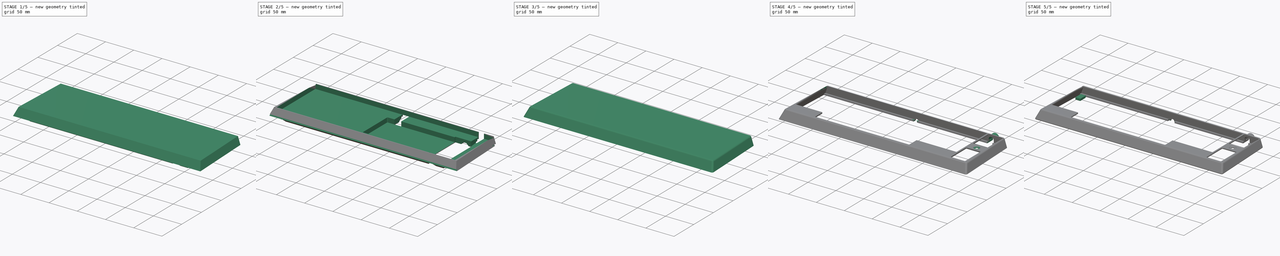
[diagram: build sequence overview — one tinted view per stage of 5, left to right]
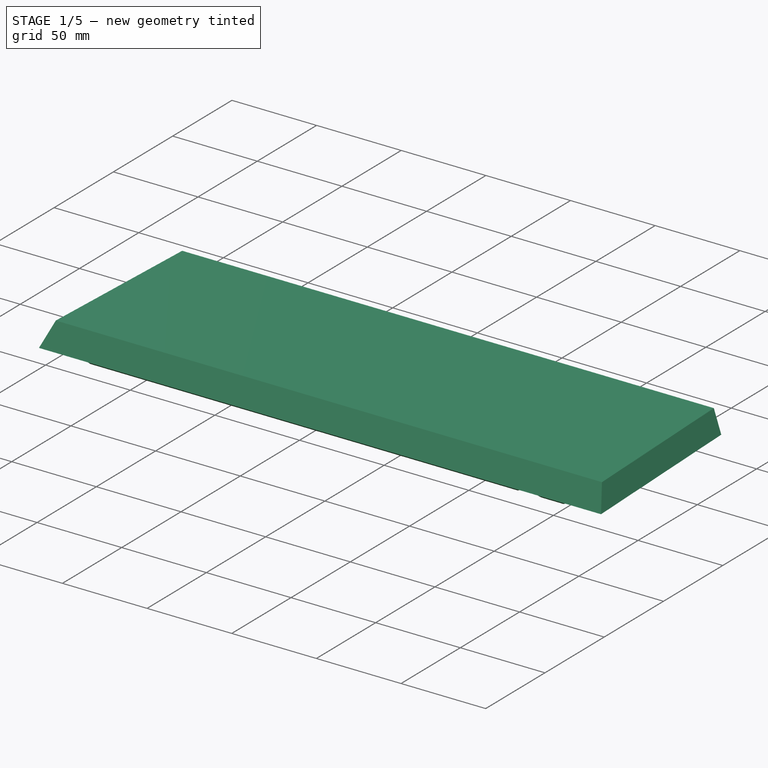
[diagram: stage 1 of 5 — iso view after this stage's code; geometry added in this stage tinted green]
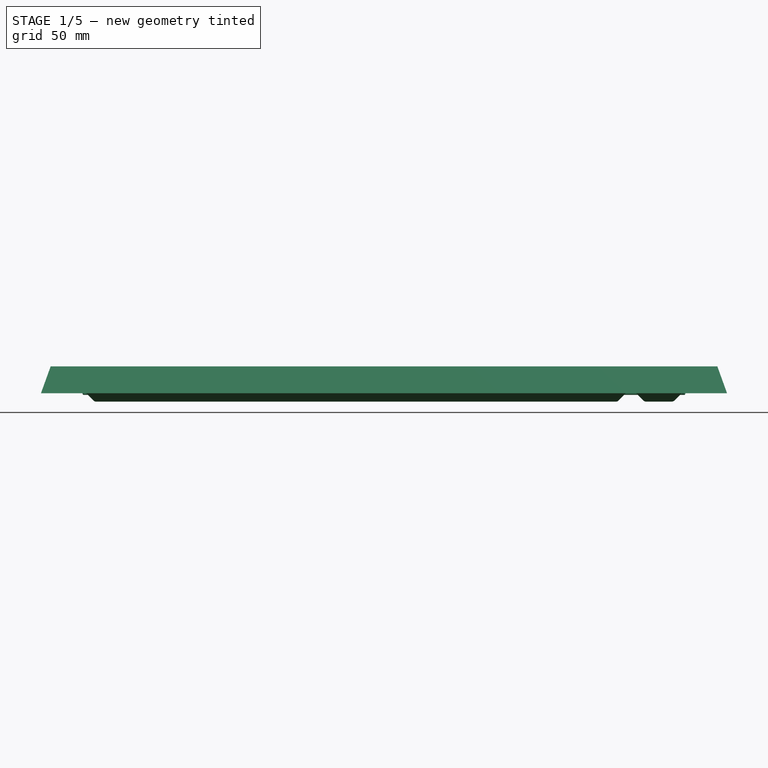
[diagram: stage 1 of 5 — front view after this stage's code; geometry added in this stage tinted green]
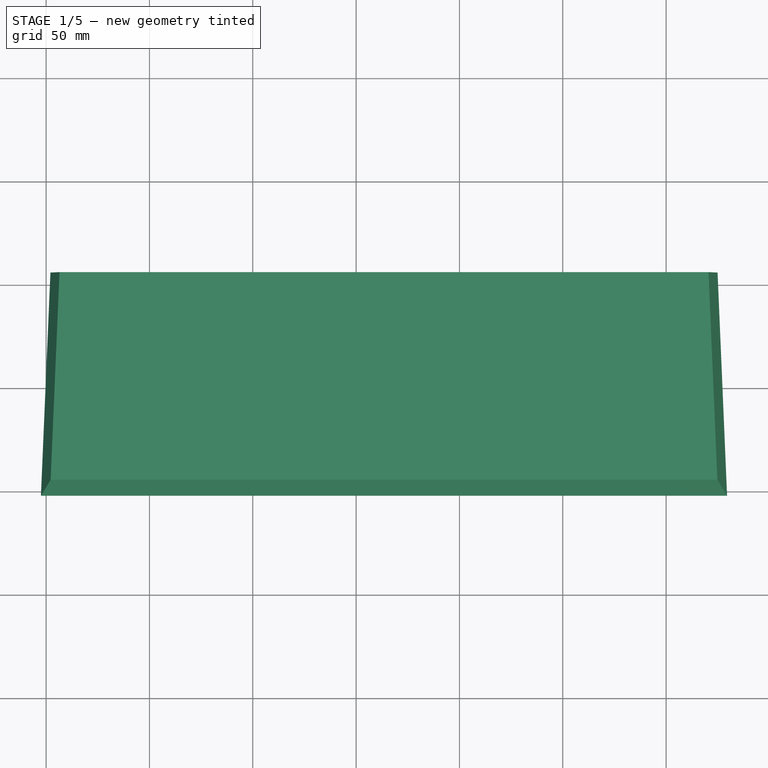
[diagram: stage 1 of 5 — top view after this stage's code; geometry added in this stage tinted green]
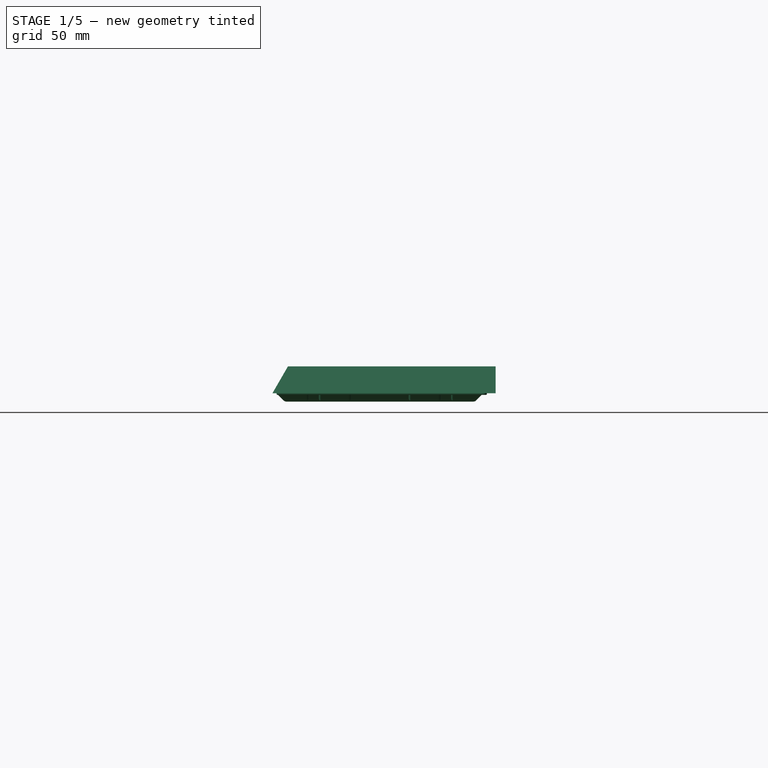
[diagram: stage 1 of 5 — right view after this stage's code; geometry added in this stage tinted green]
FCSTD DOCUMENT  (FreeCAD 0.21R33771 (Git))
Label: Decent400W-enclosure
License: All rights reserved
LicenseURL: http://en.wikipedia.org/wiki/All_rights_reserved
objects: Sketcher::SketchObject×26, PartDesign::Pocket×18, PartDesign::Fillet×13, PartDesign::Pad×8, PartDesign::Draft×6, PartDesign::SubShapeBinder×6, PartDesign::ShapeBinder×3, PartDesign::Body×3, PartDesign::SubtractiveCylinder×2, Part::Offset2D×2, PartDesign::FeatureBase×1, PartDesign::Thickness×1
note: 137 computed .brp shape members not serialized (recipe doc carries the construction recipe); baked Part::Feature solids carry a one-line shape summary decoded from their .brp

FEATURE [Sketcher::SketchObject] Sketch  label="BaseInsertSketch"
  FullyConstrained = true
  MapMode = 5
  Support = -> [XY_Plane]
  sketch-geometry (5):
    g0: LineSegment StartX=130.5 StartY=-50 StartZ=0 EndX=130.5 EndY=50 EndZ=0
    g1: LineSegment StartX=130.5 StartY=50 StartZ=0 EndX=-130.5 EndY=50 EndZ=0
    g2: LineSegment StartX=-130.5 StartY=50 StartZ=0 EndX=-130.5 EndY=-50 EndZ=0
    g3: LineSegment StartX=-130.5 StartY=-50 StartZ=0 EndX=130.5 EndY=-50 EndZ=0
    g4: GeomPoint X=0 Y=0 Z=0
  constraints (12):
    c: Coincident(g0,g1)
    c: Coincident(g1,g2)
    c: Coincident(g2,g3)
    c: Coincident(g3,g0)
    c: Horizontal(g1)
    c: Horizontal(g3)
    c: Vertical(g0)
    c: Vertical(g2)
    c: Symmetric(g1,g0,g4)
    c: Coincident(g4,g-1)
    c: DistanceY(g2,g2) = 100
    c: DistanceX(g1,g1) = 261
FEATURE [PartDesign::Pad] Pad  label="BaseInsertPad"
  Direction = (0,0,1)
  Length = 4
  Length2 = 10
  Profile = -> Sketch
  ReferenceAxis = -> Sketch [N_Axis]
  Reversed = true
  TaperAngle = -45
  Type = 0
FEATURE [Sketcher::SketchObject] Sketch001  label="MainBodySketch"
  ExternalGeometry = -> [Pad]
  FullyConstrained = true
  MapMode = 5
  Support = -> [Pad]
  sketch-geometry (4):
    g0: LineSegment StartX=-147.898 StartY=56 StartZ=0 EndX=174.898 EndY=56 EndZ=0
    g1: LineSegment StartX=174.898 StartY=56 StartZ=0 EndX=179.5 EndY=-52 EndZ=0
    g2: LineSegment StartX=179.5 StartY=-52 StartZ=0 EndX=-152.5 EndY=-52 EndZ=0
    g3: LineSegment StartX=-152.5 StartY=-52 StartZ=0 EndX=-147.898 EndY=56 EndZ=0
  constraints (12):
    c: Coincident(g0,g1)
    c: Coincident(g1,g2)
    c: Coincident(g2,g3)
    c: Coincident(g3,g0)
    c: Horizontal(g0)
    c: Horizontal(g2)
    c: DistanceY(g2,g-3) = 2
    c: Angle(g2,g3) = 1.52821
    c: Angle(g1,g2) = 1.52821
    c: DistanceX(g2,g-3) = 22
    c: DistanceY(g2,g0) = 108
    c: DistanceX(g2,g1) = 332
FEATURE [PartDesign::Pad] Pad001  label="MainBodyPad"
  BaseFeature = -> Pad
  Direction = (0,0,1)
  Length = 13
  Length2 = 10
  Profile = -> Sketch001
  ReferenceAxis = -> Sketch001 [N_Axis]
  Type = 0
FEATURE [PartDesign::Draft] Draft  label="MainBodySideDraft"
  Angle = 18.6
  Base = -> Pad001 [Face3,Face2]
  BaseFeature = -> Pad001
  NeutralPlane = -> Pad001 [Face4]
  SupportTransform = false
FEATURE [PartDesign::Draft] Draft001  label="MainBodyFrontDraft"
  Angle = 30
  Base = -> Draft [Face6]
  BaseFeature = -> Draft
  NeutralPlane = -> Draft [Face4]
  SupportTransform = false
FEATURE [PartDesign::Draft] Draft002  label="MainBodyBackDraft"
  Angle = 0
  Base = -> Draft001 [Face1]
  BaseFeature = -> Draft001
  NeutralPlane = -> Draft001 [Face4]
  SupportTransform = false
FEATURE [Sketcher::SketchObject] Sketch002  label="ConsoleKeySketch"
  ExternalGeometry = -> [Draft002]
  FullyConstrained = true
  MapMode = 5
  Placement = pos=(0,0,0) rot=(1,0,0;3.14159rad)
  Support = -> [Draft002]
  sketch-geometry (4):
    g0: LineSegment StartX=135.5 StartY=50 StartZ=0 EndX=157.5 EndY=50 EndZ=0
    g1: LineSegment StartX=157.5 StartY=50 StartZ=0 EndX=157.5 EndY=-50 EndZ=0
    g2: LineSegment StartX=157.5 StartY=-50 StartZ=0 EndX=135.5 EndY=-50 EndZ=0
    g3: LineSegment StartX=135.5 StartY=-50 StartZ=0 EndX=135.5 EndY=50 EndZ=0
  constraints (12):
    c: Coincident(g0,g1)
    c: Coincident(g1,g2)
    c: Coincident(g2,g3)
    c: Coincident(g3,g0)
    c: Horizontal(g0)
    c: Horizontal(g2)
    c: Vertical(g1)
    c: Vertical(g3)
    c: DistanceX(g0,g0) = 22
    c: DistanceY(g1,g1) = 100
    c: Horizontal(g-3,g0)
    c: DistanceX(g-3,g0) = 5
FEATURE [PartDesign::Pad] Pad002  label="ConsoleKeyPad"
  BaseFeature = -> Draft002
  Direction = (0,0,-1)
  Length = 4
  Length2 = 10
  Profile = -> Sketch002
  ReferenceAxis = -> Sketch002 [N_Axis]
  TaperAngle = -45
  Type = 0
FEATURE [Sketcher::SketchObject] Sketch003
  ExternalGeometry = -> [Pad002]
  FullyConstrained = true
  MapMode = 5
  Placement = pos=(0,0,-4) rot=(1,0,0;3.14159rad)
  Support = -> [Pad002]
  sketch-geometry (17):
    g0: LineSegment StartX=135.5 StartY=14 StartZ=0 EndX=157.5 EndY=14 EndZ=0
    g1: LineSegment StartX=157.5 StartY=14 StartZ=0 EndX=157.5 EndY=-14 EndZ=0
    g2: LineSegment StartX=157.5 StartY=-14 StartZ=0 EndX=135.5 EndY=-14 EndZ=0
    g3: LineSegment StartX=135.5 StartY=-14 StartZ=0 EndX=135.5 EndY=14 EndZ=0
    g4: LineSegment StartX=135.5 StartY=50 StartZ=0 EndX=135.5 EndY=14 EndZ=0
    g5: LineSegment StartX=135.5 StartY=-14 StartZ=0 EndX=135.5 EndY=-50 EndZ=0
    g6: LineSegment StartX=157.5 StartY=34.5 StartZ=0 EndX=135.5 EndY=34.5 EndZ=0
    g7: LineSegment StartX=135.5 StartY=34.5 StartZ=0 EndX=135.5 EndY=29.5 EndZ=0
    g8: LineSegment StartX=135.5 StartY=29.5 StartZ=0 EndX=157.5 EndY=29.5 EndZ=0
    g9: LineSegment StartX=157.5 StartY=29.5 StartZ=0 EndX=157.5 EndY=34.5 EndZ=0
    g10: LineSegment StartX=135.5 StartY=50 StartZ=0 EndX=135.5 EndY=34.5 EndZ=0
    g11: LineSegment StartX=135.5 StartY=29.5 StartZ=0 EndX=135.5 EndY=14 EndZ=0
    g12: LineSegment StartX=157.5 StartY=-29.5 StartZ=0 EndX=135.5 EndY=-29.5 EndZ=0
    g13: LineSegment StartX=135.5 StartY=-29.5 StartZ=0 EndX=135.5 EndY=-34.5 EndZ=0
    g14: LineSegment StartX=135.5 StartY=-34.5 StartZ=0 EndX=157.5 EndY=-34.5 EndZ=0
    g15: LineSegment StartX=157.5 StartY=-34.5 StartZ=0 EndX=157.5 EndY=-29.5 EndZ=0
    g16: LineSegment StartX=157.5 StartY=-14 StartZ=0 EndX=157.5 EndY=-29.5 EndZ=0
  constraints (46):
    c: Coincident(g0,g1)
    c: Coincident(g1,g2)
    c: Coincident(g2,g3)
    c: Coincident(g3,g0)
    c: Horizontal(g0)
    c: Horizontal(g2)
    c: Vertical(g1)
    c: Vertical(g3)
    c: Vertical(g-3,g0)
    c: Vertical(g-4,g0)
    c: DistanceY(g1,g1) = 28
    c: Coincident(g4,g-3)
    c: Coincident(g4,g0)
    c: Coincident(g5,g2)
    c: Coincident(g5,g-5)
    c: Equal(g4,g5)
    c: Coincident(g6,g7)
    c: Coincident(g7,g8)
    c: Coincident(g8,g9)
    c: Coincident(g9,g6)
    c: Horizontal(g6)
    c: Horizontal(g8)
    c: Vertical(g7)
    c: Vertical(g9)
    c: PointOnObject(g7,g4)
    c: DistanceY(g9,g9) = 5
    c: Vertical(g6,g-4)
    c: Coincident(g10,g4)
    c: Coincident(g10,g6)
    c: Coincident(g11,g7)
    c: Coincident(g11,g0)
    c: Equal(g10,g11)
    c: Coincident(g12,g13)
    c: Coincident(g13,g14)
    c: Coincident(g14,g15)
    c: Coincident(g15,g12)
    c: Horizontal(g12)
    c: Horizontal(g14)
    c: Vertical(g13)
    c: Vertical(g15)
    c: Vertical(g12,g2)
    c: Vertical(g1,g12)
    c: Equal(g9,g15)
    c: Coincident(g16,g1)
    c: Coincident(g16,g12)
    c: Equal(g11,g16)
FEATURE [PartDesign::Pocket] Pocket  label="ConsoleKeySeparationPocket"
  BaseFeature = -> Pad002
  Direction = (0,0,1)
  Length = 0
  Length2 = 5
  Profile = -> Sketch003
  ReferenceAxis = -> Sketch003 [N_Axis]
  Type = 3
  UpToFace = -> Pad002 [Face4]
FEATURE [Sketcher::SketchObject] Sketch004  label="TrenchInsertSketch"
  ExternalGeometry = -> [Pocket]
  FullyConstrained = true
  MapMode = 5
  Placement = pos=(0,0,0) rot=(1,0,0;3.14159rad)
  Support = -> [Pocket]
  sketch-geometry (12):
    g0: LineSegment StartX=-131.3 StartY=50 StartZ=0 EndX=-131.3 EndY=-50 EndZ=0
    g1: LineSegment StartX=-130.5 StartY=-50.8 StartZ=0 EndX=157.5 EndY=-50.8 EndZ=0
    g2: LineSegment StartX=158.3 StartY=-50 StartZ=0 EndX=158.3 EndY=50 EndZ=0
    g3: LineSegment StartX=158.3 StartY=50 StartZ=0 EndX=159.3 EndY=50 EndZ=0
    g4: LineSegment StartX=159.3 StartY=50 StartZ=0 EndX=159.3 EndY=-50 EndZ=0
    g5: LineSegment StartX=157.5 StartY=-51.8 StartZ=0 EndX=-130.5 EndY=-51.8 EndZ=0
    g6: LineSegment StartX=-132.3 StartY=-50 StartZ=0 EndX=-132.3 EndY=50 EndZ=0
    g7: LineSegment StartX=-132.3 StartY=50 StartZ=0 EndX=-131.3 EndY=50 EndZ=0
    g8: ArcOfCircle CenterX=-130.5 CenterY=-50 CenterZ=0 NormalX=0 NormalY=0 NormalZ=1 AngleXU=0 Radius=0.8 StartAngle=3.14159 EndAngle=4.71239
    g9: ArcOfCircle CenterX=-130.5 CenterY=-50 CenterZ=0 NormalX=0 NormalY=0 NormalZ=1 AngleXU=0 Radius=1.8 StartAngle=3.14159 EndAngle=4.7124
    g10: ArcOfCircle CenterX=157.5 CenterY=-50 CenterZ=0 NormalX=0 NormalY=0 NormalZ=1 AngleXU=0 Radius=0.8 StartAngle=4.71239 EndAngle=6.28319
    g11: ArcOfCircle CenterX=157.5 CenterY=-50 CenterZ=0 NormalX=0 NormalY=0 NormalZ=1 AngleXU=0 Radius=1.8 StartAngle=4.71239 EndAngle=6.28319
  constraints (36):
    c: Vertical(g0)
    c: Horizontal(g1)
    c: Vertical(g2)
    c: Coincident(g2,g3)
    c: Horizontal(g3)
    c: Coincident(g3,g4)
    c: Vertical(g4)
    c: Horizontal(g5)
    c: Coincident(g6,g7)
    c: Coincident(g7,g0)
    c: Horizontal(g7)
    c: Horizontal(g0,g-3)
    c: Horizontal(g6,g3)
    c: DistanceX(g0,g-4) = 0.8
    c: DistanceX(g7,g7) = 1
    c: Equal(g7,g3)
    c: Coincident(g8,g-4)
    c: Vertical(g8,g8)
    c: DistanceY(g8,g8) = 0.8
    c: Coincident(g1,g8)
    c: Coincident(g0,g8)
    c: Vertical(g6)
    c: Coincident(g9,g5)
    c: Coincident(g9,g8)
    c: Horizontal(g9,g8)
    c: Coincident(g6,g9)
    c: Horizontal(g-5,g2)
    c: Vertical(g1,g-5)
    c: Coincident(g10,g-5)
    c: Coincident(g10,g1)
    c: Coincident(g10,g2)
    c: Horizontal(g10,g4)
    c: Vertical(g10,g5)
    c: Coincident(g11,g10)
    c: Coincident(g11,g5)
    c: Coincident(g11,g4)
FEATURE [PartDesign::Fillet] Fillet  label="ConsoleKeyAndKeybordInsertFillet"
  Base = -> Pocket [Edge61,Edge64,Edge63,Edge78,Edge62,Edge59,Edge60,Edge54,Edge77,Edge66,Edge76,Edge65,Edge67,Edge75,Edge74,Edge70,Edge68,Edge69,Edge49,Edge50,Edge71,Edge43,Edge72,Edge73,Edge44,Edge42,Edge58,Edge55,Edge53,Edge48,Edge45,Edge41,Edge33,Edge35,Edge37,Edge38,Edge39,Edge40,Edge36,Edge34]
  BaseFeature = -> Pocket
  Radius = 1.5
  SupportTransform = false
  UseAllEdges = false
FEATURE [PartDesign::Pad] Pad003  label="TrenchInsertPad"
  BaseFeature = -> Fillet
  Direction = (0,0,-1)
  Length = 0.75
  Length2 = 10
  Profile = -> Sketch004
  ReferenceAxis = -> Sketch004 [N_Axis]
  Type = 0
FEATURE [PartDesign::Fillet] Fillet002  label="TrenchInsertShapeFillet"
  Base = -> Pad003 [Edge147,Edge151,Edge148,Edge146,Edge149,Edge136,Edge137,Edge134]
  BaseFeature = -> Pad003
  Radius = 0.45
  SupportTransform = false
  UseAllEdges = false
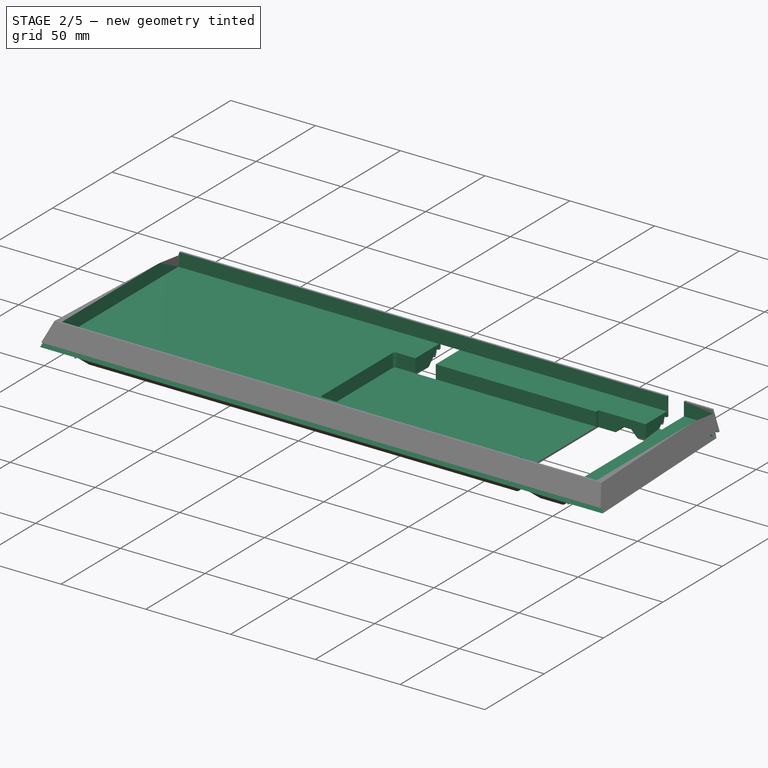
[diagram: stage 2 of 5 — iso view after this stage's code; geometry added in this stage tinted green]
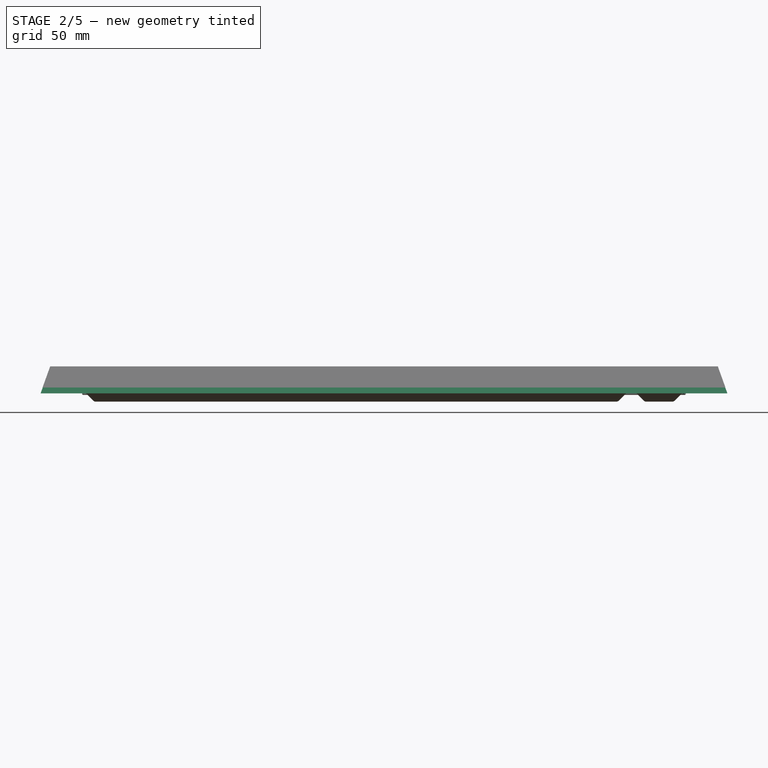
[diagram: stage 2 of 5 — front view after this stage's code; geometry added in this stage tinted green]
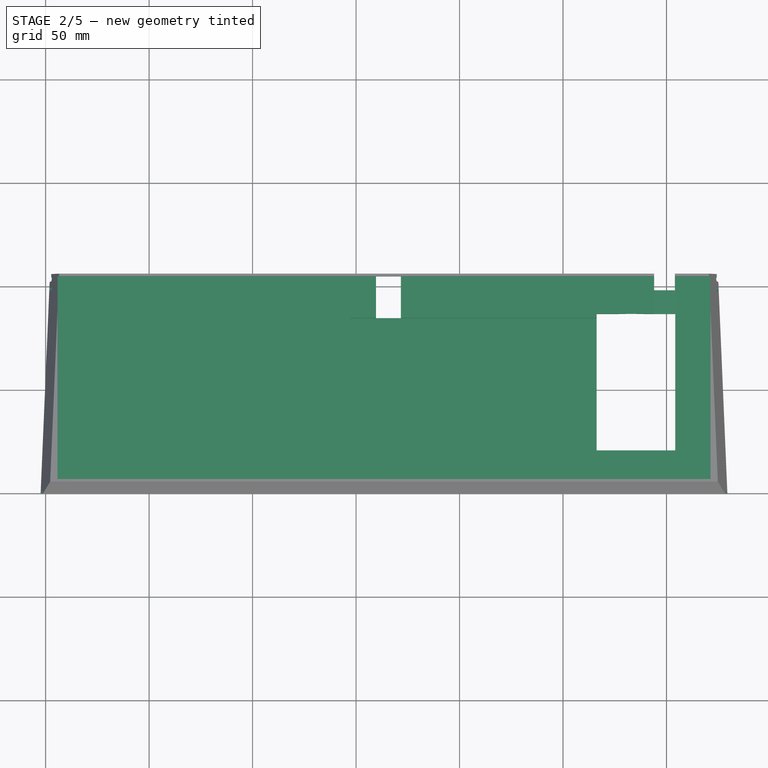
[diagram: stage 2 of 5 — top view after this stage's code; geometry added in this stage tinted green]
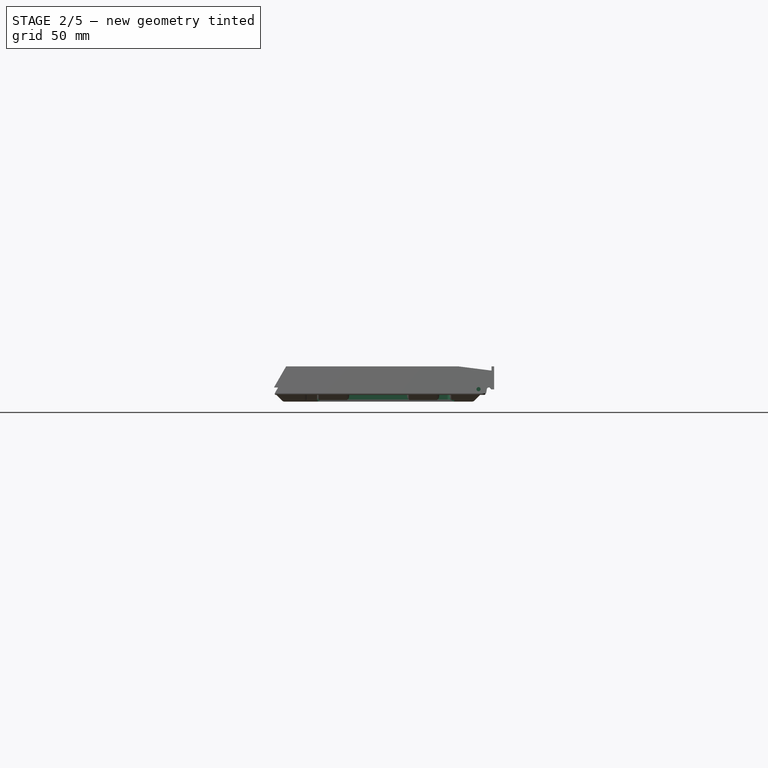
[diagram: stage 2 of 5 — right view after this stage's code; geometry added in this stage tinted green]
FEATURE [Sketcher::SketchObject] Sketch005  label="KeyboardPocketSketch"
  ExternalGeometry = -> [Fillet002]
  FullyConstrained = true
  MapMode = 5
  Placement = pos=(0,0,13) rot=(0,0,1;0rad)
  Support = -> [Fillet002]
  sketch-geometry (10):
    g0: LineSegment StartX=-144.25 StartY=54.7528 StartZ=0 EndX=171.25 EndY=54.7528 EndZ=0
    g1: LineSegment StartX=171.25 StartY=54.7528 StartZ=0 EndX=171.25 EndY=-43.2472 EndZ=0
    g2: LineSegment StartX=171.25 StartY=-43.2472 StartZ=0 EndX=-144.25 EndY=-43.2472 EndZ=0
    g3: LineSegment StartX=-144.25 StartY=-43.2472 StartZ=0 EndX=-144.25 EndY=54.7528 EndZ=0
    g4: LineSegment StartX=-143.519 StartY=56 StartZ=0 EndX=-144.25 EndY=54.7528 EndZ=0
    g5: LineSegment StartX=-147.801 StartY=-44.4944 StartZ=0 EndX=-144.25 EndY=-43.2472 EndZ=0
    g6: LineSegment StartX=171.25 StartY=54.7528 StartZ=0 EndX=170.519 EndY=56 EndZ=0
    g7: LineSegment StartX=171.25 StartY=-43.2472 StartZ=0 EndX=174.801 EndY=-44.4944 EndZ=0
    g8: LineSegment StartX=-144.25 StartY=54.7528 StartZ=0 EndX=-144.25 EndY=56 EndZ=0
    g9: LineSegment StartX=-144.25 StartY=-43.2472 StartZ=0 EndX=-144.25 EndY=-44.4944 EndZ=0
  constraints (26):
    c: Coincident(g0,g1)
    c: Coincident(g1,g2)
    c: Coincident(g2,g3)
    c: Coincident(g3,g0)
    c: Horizontal(g0)
    c: Horizontal(g2)
    c: Vertical(g1)
    c: Vertical(g3)
    c: Coincident(g4,g-3)
    c: Coincident(g4,g0)
    c: Coincident(g5,g-3)
    c: Coincident(g5,g2)
    c: Coincident(g6,g0)
    c: Coincident(g6,g-4)
    c: Coincident(g7,g1)
    c: Coincident(g7,g-4)
    c: DistanceX(g0,g0) = 315.5
    c: Equal(g4,g6)
    c: DistanceY(g1,g1) = 98
    c: Coincident(g8,g0)
    c: Vertical(g8)
    c: Horizontal(g8,g4)
    c: Coincident(g9,g2)
    c: Vertical(g9)
    c: Horizontal(g5,g9)
    c: Equal(g9,g8)
FEATURE [PartDesign::Pocket] Pocket001  label="KeyboardPocket"
  BaseFeature = -> Fillet002
  Direction = (0,0,-1)
  Length = 8
  Length2 = 5
  Profile = -> Sketch005
  ReferenceAxis = -> Sketch005 [N_Axis]
  Type = 0
FEATURE [Sketcher::SketchObject] Sketch006  label="CableWindowSketch"
  ExternalGeometry = -> [Pocket001]
  FullyConstrained = true
  MapMode = 5
  Placement = pos=(0,56,0) rot=(0,0.707107,0.707107;3.14159rad)
  Support = -> [Pocket001]
  sketch-geometry (4):
    g0: LineSegment StartX=-154.019 StartY=14 StartZ=0 EndX=-154.019 EndY=-1 EndZ=0
    g1: LineSegment StartX=-144.019 StartY=-1 StartZ=0 EndX=-144.019 EndY=14 EndZ=0
    g2: LineSegment StartX=-144.019 StartY=14 StartZ=0 EndX=-154.019 EndY=14 EndZ=0
    g3: LineSegment StartX=-154.019 StartY=-1 StartZ=0 EndX=-144.019 EndY=-1 EndZ=0
  constraints (12):
    c: Vertical(g0)
    c: Vertical(g1)
    c: Coincident(g1,g2)
    c: Coincident(g2,g0)
    c: Horizontal(g0,g1)
    c: DistanceX(g-3,g0) = 16.5
    c: Coincident(g3,g0)
    c: Coincident(g3,g1)
    c: DistanceX(g3,g3) = 10
    c: DistanceY(g1,g1) = 15
    c: Horizontal(g2)
    c: DistanceY(g-3,g0) = 1
FEATURE [PartDesign::Pocket] Pocket002  label="CableWindowPocket"
  BaseFeature = -> Pocket001
  Direction = (0,-1,-0.1)
  Length = 20
  Length2 = 5
  Profile = -> Sketch006
  ReferenceAxis = -> Sketch006 [N_Axis]
  Type = 0
  UseCustomVector = true
FEATURE [Sketcher::SketchObject] Sketch007  label="ConnectorBottomWindowSketch"
  ExternalGeometry = -> [Pocket001]
  FullyConstrained = true
  MapMode = 5
  Placement = pos=(0,0,5) rot=(0,0,1;0rad)
  sketch-geometry (4):
    g0: LineSegment StartX=116.25 StartY=-29.2472 StartZ=0 EndX=154.25 EndY=-29.2472 EndZ=0
    g1: LineSegment StartX=154.25 StartY=-29.2472 StartZ=0 EndX=154.25 EndY=36.7528 EndZ=0
    g2: LineSegment StartX=154.25 StartY=36.7528 StartZ=0 EndX=116.25 EndY=36.7528 EndZ=0
    g3: LineSegment StartX=116.25 StartY=36.7528 StartZ=0 EndX=116.25 EndY=-29.2472 EndZ=0
  constraints (12):
    c: Coincident(g0,g1)
    c: Coincident(g1,g2)
    c: Coincident(g2,g3)
    c: Coincident(g3,g0)
    c: Horizontal(g0)
    c: Horizontal(g2)
    c: Vertical(g1)
    c: Vertical(g3)
    c: DistanceY(g-3,g0) = 14
    c: DistanceY(g1,g-3) = 18
    c: DistanceX(g1,g-3) = 17
    c: DistanceX(g2,g-3) = 55
FEATURE [PartDesign::Pocket] Pocket003  label="ConnectorBottomWindow"
  BaseFeature = -> Pocket002
  Direction = (0,0,-1)
  Length = 5
  Length2 = 5
  Profile = -> Sketch007
  ReferenceAxis = -> Sketch007 [N_Axis]
  Type = 1
FEATURE [Sketcher::SketchObject] Sketch008  label="AssemblyNotchesSketch"
  ExternalGeometry = -> [Draft001]
  FullyConstrained = true
  MapMode = 5
  Placement = pos=(158.96,6.77355,53.5443) rot=(0.486196,0.514306,0.706472;1.93868rad)
  Support = -> [Draft001]
  sketch-geometry (9):
    g0: LineSegment StartX=-57.1908 StartY=-54.2999 StartZ=0 EndX=-55.1908 EndY=-54.2999 EndZ=0
    g1: LineSegment StartX=-55.1908 StartY=-54.2999 StartZ=0 EndX=-56.8215 EndY=-57.2999 EndZ=0
    g2: LineSegment StartX=-56.8215 StartY=-57.2999 StartZ=0 EndX=-58.8215 EndY=-57.2999 EndZ=0
    g3: LineSegment StartX=-58.8215 StartY=-57.2999 StartZ=0 EndX=-57.1908 EndY=-54.2999 EndZ=0
    g4: LineSegment StartX=49.2666 StartY=-55.9308 StartZ=0 EndX=45.3963 EndY=-55.9308 EndZ=0
    g5: LineSegment StartX=45.3963 StartY=-55.9308 StartZ=0 EndX=45.7666 EndY=-53.8308 EndZ=0
    g6: ArcOfCircle CenterX=46.7666 CenterY=-53.8308 CenterZ=0 NormalX=0 NormalY=0 NormalZ=1 AngleXU=0 Radius=1 StartAngle=5e-16 EndAngle=3.14159
    g7: LineSegment StartX=47.7666 StartY=-53.8308 StartZ=0 EndX=49.2666 EndY=-53.8308 EndZ=0
    g8: LineSegment StartX=49.2666 StartY=-53.8308 StartZ=0 EndX=49.2666 EndY=-55.9308 EndZ=0
  constraints (27):
    c: PointOnObject(g0,g-5)
    c: Horizontal(g0)
    c: Coincident(g0,g1)
    c: Coincident(g1,g2)
    c: Coincident(g2,g-5)
    c: Horizontal(g2)
    c: Coincident(g2,g3)
    c: Coincident(g3,g0)
    c: Parallel(g3,g1)
    c: DistanceX(g0,g0) = 2
    c: DistanceY(g2,g0) = 3
    c: Horizontal(g4)
    c: Coincident(g4,g5)
    c: Coincident(g6,g7)
    c: Coincident(g7,g8)
    c: Coincident(g8,g4)
    c: Vertical(g8)
    c: Horizontal(g7)
    c: Horizontal(g5,g6)
    c: DistanceX(g7,g7) = 1.5
    c: Diameter(g6) = 2
    c: DistanceY(g8,g8) = 2.1
    c: PointOnObject(g7,g-6)
    c: DistanceY(g4,g-6) = 0.1
    c: Horizontal(g6,g5)
    c: Coincident(g5,g6)
    c: Angle(g4,g5) = 1.39626
FEATURE [PartDesign::Pocket] Pocket004  label="AssemblyNotches"
  BaseFeature = -> Pocket003
  Direction = (1,0,0)
  Length = 1
  Length2 = 5
  Profile = -> Sketch008
  ReferenceAxis = -> Pocket003 [Edge57]
  Reversed = true
  Type = 1
FEATURE [Sketcher::SketchObject] Sketch010  label="RaiserPocketSketch"
  ExternalGeometry = -> [Pad002]
  FullyConstrained = true
  MapMode = 5
  Placement = pos=(0,0,0) rot=(1,0,0;3.14159rad)
  Support = -> [Pad002]
  sketch-geometry (10):
    g0: LineSegment StartX=-144.898 StartY=-51 StartZ=0 EndX=-134.898 EndY=-51 EndZ=0
    g1: LineSegment StartX=-134.898 StartY=-51 StartZ=0 EndX=-134.898 EndY=-32 EndZ=0
    g2: LineSegment StartX=-134.898 StartY=-32 StartZ=0 EndX=-144.898 EndY=-32 EndZ=0
    g3: LineSegment StartX=-144.898 StartY=-32 StartZ=0 EndX=-144.898 EndY=-51 EndZ=0
    g4: LineSegment StartX=161.898 StartY=-51 StartZ=0 EndX=171.898 EndY=-51 EndZ=0
    g5: LineSegment StartX=171.898 StartY=-51 StartZ=0 EndX=171.898 EndY=-32 EndZ=0
    g6: LineSegment StartX=171.898 StartY=-32 StartZ=0 EndX=161.898 EndY=-32 EndZ=0
    g7: LineSegment StartX=161.898 StartY=-32 StartZ=0 EndX=161.898 EndY=-51 EndZ=0
    g8: LineSegment StartX=-147.898 StartY=-56 StartZ=0 EndX=-144.898 EndY=-51 EndZ=0
    g9: LineSegment StartX=171.898 StartY=-51 StartZ=0 EndX=174.898 EndY=-56 EndZ=0
  constraints (28):
    c: Coincident(g0,g1)
    c: Coincident(g1,g2)
    c: Coincident(g2,g3)
    c: Coincident(g3,g0)
    c: Horizontal(g0)
    c: Horizontal(g2)
    c: Vertical(g1)
    c: Vertical(g3)
    c: Coincident(g4,g5)
    c: Coincident(g5,g6)
    c: Coincident(g6,g7)
    c: Coincident(g7,g4)
    c: Horizontal(g4)
    c: Horizontal(g6)
    c: Vertical(g5)
    c: Vertical(g7)
    c: Horizontal(g0,g4)
    c: Horizontal(g1,g6)
    c: Coincident(g8,g-3)
    c: Coincident(g8,g0)
    c: Coincident(g9,g4)
    c: Coincident(g9,g-3)
    c: DistanceX(g2,g2) = 10
    c: DistanceX(g8,g0) = 3
    c: DistanceY(g8,g0) = 5
    c: Equal(g2,g6)
    c: DistanceX(g4,g9) = 3
    c: DistanceY(g1,g1) = 19
FEATURE [PartDesign::Pocket] Pocket006  label="RaiserPocket"
  BaseFeature = -> Pocket004
  Direction = (0,0,1)
  Length = 4
  Length2 = 5
  Profile = -> Sketch010
  ReferenceAxis = -> Sketch010 [N_Axis]
  Type = 0
FEATURE [PartDesign::SubtractiveCylinder] Cylinder  label="RightRaiserAxisHole"
  Angle = 360
  AttacherType = Attacher::AttachEngine3D
  AttachmentOffset = pos=(2.5,2,-19) rot=(0,0,1;0rad)
  BaseFeature = -> Pocket006
  FirstAngle = 0
  Height = 23
  MapMode = 7
  Placement = pos=(-125.898,48.5,2) rot=(0.57735,-0.57735,-0.57735;2.0944rad)
  Radius = 1
  SecondAngle = 0
  Support = -> [Pocket006]
FEATURE [PartDesign::SubtractiveCylinder] Cylinder001  label="LeftRaiserAxisHole"
  Angle = 360
  AttacherType = Attacher::AttachEngine3D
  AttachmentOffset = pos=(2.5,2,-15) rot=(0,0,1;0rad)
  BaseFeature = -> Cylinder
  FirstAngle = 0
  Height = 22
  MapMode = 7
  Placement = pos=(176.898,48.5,2) rot=(0.57735,-0.57735,-0.57735;2.0944rad)
  Radius = 1
  SecondAngle = 0
  Support = -> [Cylinder]
FEATURE [Sketcher::SketchObject] Sketch011  label="ControllerPocketSketch"
  ExternalGeometry = -> [Pocket001]
  FullyConstrained = true
  MapMode = 5
  Placement = pos=(0,0,5) rot=(0,0,1;0rad)
  Support = -> [Pocket001]
  sketch-geometry (10):
    g0: ArcOfCircle CenterX=-1.35 CenterY=33.2528 CenterZ=0 NormalX=0 NormalY=0 NormalZ=1 AngleXU=0 Radius=1.5 StartAngle=1.5708 EndAngle=3.14159
    g1: LineSegment StartX=-1.35 StartY=34.7528 StartZ=0 EndX=150.65 EndY=34.7528 EndZ=0
    g2: ArcOfCircle CenterX=150.65 CenterY=33.2528 CenterZ=0 NormalX=0 NormalY=0 NormalZ=1 AngleXU=0 Radius=1.5 StartAngle=8e-16 EndAngle=1.5708
    g3: LineSegment StartX=152.15 StartY=33.2528 StartZ=0 EndX=152.15 EndY=-26.2472 EndZ=0
    g4: ArcOfCircle CenterX=150.65 CenterY=-26.2472 CenterZ=0 NormalX=0 NormalY=0 NormalZ=1 AngleXU=0 Radius=1.5 StartAngle=4.71239 EndAngle=6.28319
    g5: LineSegment StartX=150.65 StartY=-27.7472 StartZ=0 EndX=-1.35 EndY=-27.7472 EndZ=0
    g6: ArcOfCircle CenterX=-1.35 CenterY=-26.2472 CenterZ=0 NormalX=0 NormalY=0 NormalZ=1 AngleXU=0 Radius=1.5 StartAngle=3.14159 EndAngle=4.71239
    g7: LineSegment StartX=-2.85 StartY=-26.2472 StartZ=0 EndX=-2.85 EndY=33.2528 EndZ=0
    g8: GeomPoint X=-2.85 Y=34.7528 Z=0
    g9: GeomPoint X=152.15 Y=-27.7472 Z=0
  constraints (24):
    c: Tangent(g0,g1) = 1.5708
    c: Tangent(g1,g2) = 1.5708
    c: Tangent(g2,g3) = 1.5708
    c: Tangent(g3,g4) = 1.5708
    c: Tangent(g4,g5) = 1.5708
    c: Tangent(g5,g6) = 1.5708
    c: Tangent(g6,g7) = 1.5708
    c: Tangent(g7,g0) = 1.5708
    c: Horizontal(g1)
    c: Horizontal(g5)
    c: Vertical(g3)
    c: Vertical(g7)
    c: Equal(g0,g2)
    c: Equal(g2,g4)
    c: Equal(g4,g6)
    c: PointOnObject(g8,g1)
    c: PointOnObject(g8,g7)
    c: PointOnObject(g9,g3)
    c: PointOnObject(g9,g5)
    c: Diameter(g0) = 3
    c: DistanceY(g4,g1) = 62.5
    c: DistanceX(g6,g3) = 155
    c: DistanceX(g2,g-3) = 19.1
    c: DistanceY(g1,g-3) = 20
FEATURE [PartDesign::Pocket] Pocket007  label="ControllerPocket"
  BaseFeature = -> Cylinder001
  Direction = (0,0,-1)
  Length = 8
  Length2 = 5
  Placement = pos=(176.898,48.5,2) rot=(0.57735,-0.57735,-0.57735;2.0944rad)
  Profile = -> Sketch011
  ReferenceAxis = -> Sketch011 [N_Axis]
  Type = 0
FEATURE [Sketcher::SketchObject] Sketch012  label="UsbSketch"
  ExternalGeometry = -> [Pocket007]
  FullyConstrained = true
  MapMode = 5
  Placement = pos=(176.898,34.7528,2) rot=(0.57735,-0.57735,0.57735;2.0944rad)
  Support = -> [Pocket007]
  sketch-geometry (4):
    g0: LineSegment StartX=-6 StartY=167.248 StartZ=0 EndX=-6 EndY=155.248 EndZ=0
    g1: LineSegment StartX=-6 StartY=155.248 StartZ=0 EndX=3 EndY=155.248 EndZ=0
    g2: LineSegment StartX=3 StartY=155.248 StartZ=0 EndX=3 EndY=167.248 EndZ=0
    g3: LineSegment StartX=-6 StartY=167.248 StartZ=0 EndX=3 EndY=167.248 EndZ=0
  constraints (12):
    c: Coincident(g0,g1)
    c: Coincident(g1,g2)
    c: Horizontal(g1)
    c: Vertical(g0)
    c: Vertical(g2)
    c: DistanceY(g2,g2) = 12
    c: DistanceX(g1,g1) = 9
    c: Coincident(g3,g0)
    c: Coincident(g3,g2)
    c: Horizontal(g3)
    c: PointOnObject(g2,g-4)
    c: DistanceY(g2,g-4) = 11
FEATURE [PartDesign::Pocket] Pocket008  label="UsbPocket"
  BaseFeature = -> Pocket007
  Direction = (0,1,0)
  Length = 5
  Length2 = 5
  Placement = pos=(176.898,48.5,2) rot=(0.57735,-0.57735,-0.57735;2.0944rad)
  Profile = -> Sketch012
  ReferenceAxis = -> Sketch012 [N_Axis]
  Refine = true
  Type = 1
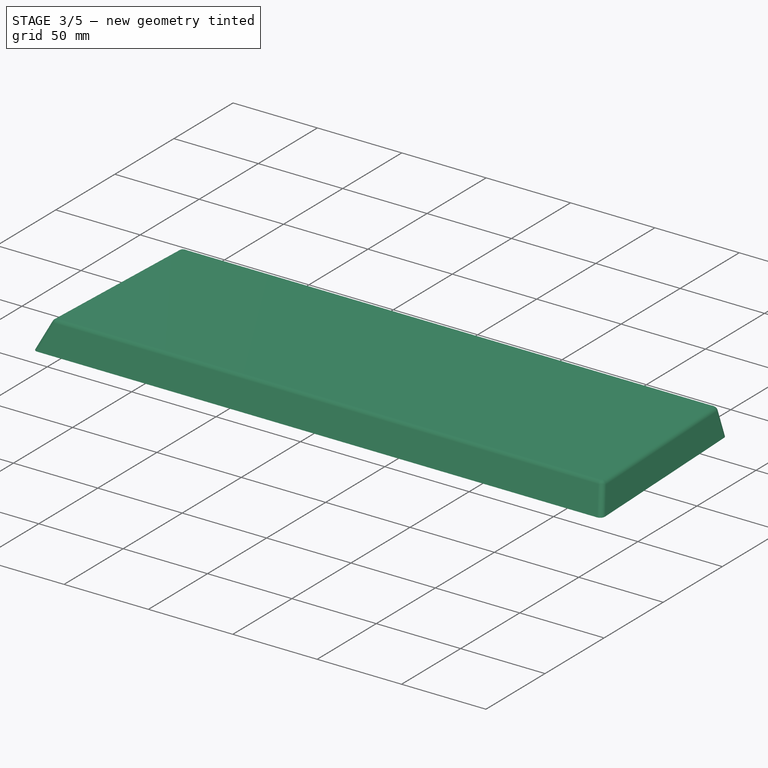
[diagram: stage 3 of 5 — iso view after this stage's code; geometry added in this stage tinted green]
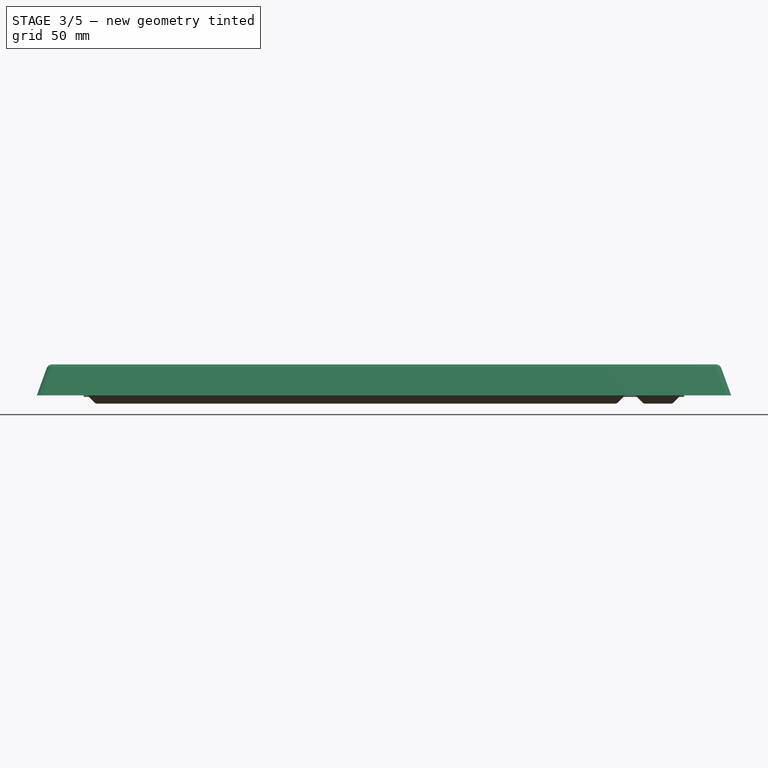
[diagram: stage 3 of 5 — front view after this stage's code; geometry added in this stage tinted green]
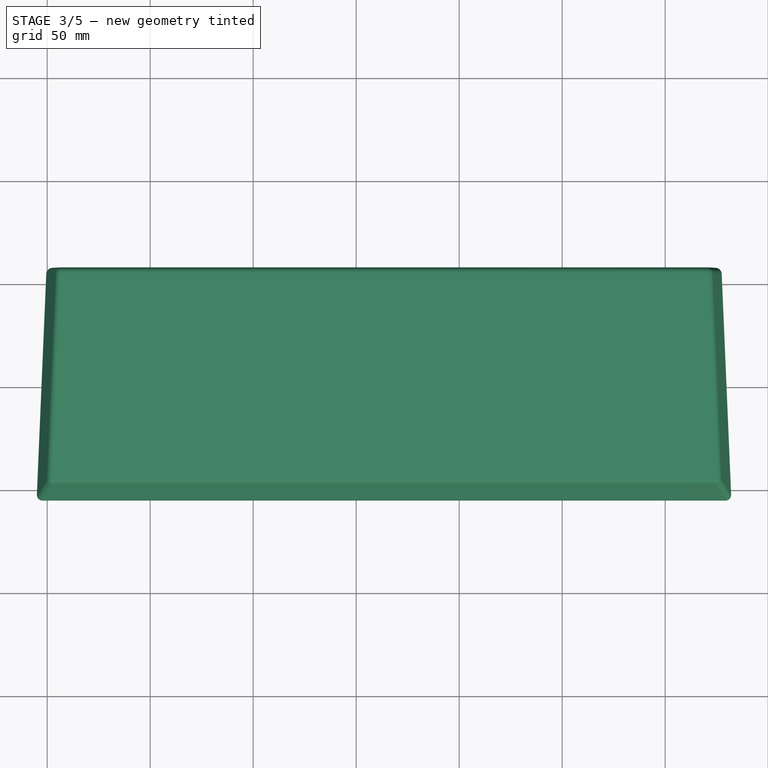
[diagram: stage 3 of 5 — top view after this stage's code; geometry added in this stage tinted green]
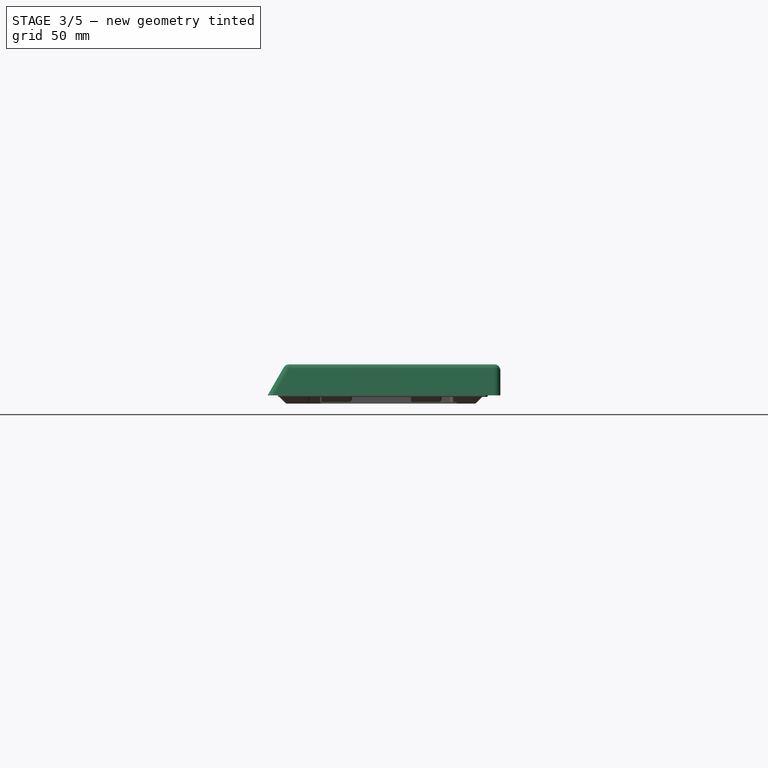
[diagram: stage 3 of 5 — right view after this stage's code; geometry added in this stage tinted green]
FEATURE [PartDesign::ShapeBinder] ShapeBinder  label="BaseBinder"
  Support = -> [Sketch001]
  TraceSupport = false
FEATURE [Sketcher::SketchObject] Sketch013  label="InsideBaseSketch"
  ExternalGeometry = -> [ShapeBinder]
  FullyConstrained = true
  MapMode = 5
  Support = -> [XY_Plane001]
  sketch-geometry (4):
    g0: LineSegment StartX=-153.043 StartY=-53 StartZ=0 EndX=-148.398 EndY=56 EndZ=0
    g1: LineSegment StartX=-148.398 StartY=56 StartZ=0 EndX=175.398 EndY=56 EndZ=0
    g2: LineSegment StartX=175.398 StartY=56 StartZ=0 EndX=180.043 EndY=-53 EndZ=0
    g3: LineSegment StartX=180.043 StartY=-53 StartZ=0 EndX=-153.043 EndY=-53 EndZ=0
  constraints (12):
    c: Coincident(g1,g0)
    c: Horizontal(g3)
    c: Coincident(g3,g0)
    c: Coincident(g3,g2)
    c: DistanceY(g2,g-6) = 1
    c: Horizontal(g1)
    c: Coincident(g1,g2)
    c: Parallel(g0,g-5)
    c: Parallel(g2,g-6)
    c: Horizontal(g0,g-5)
    c: DistanceX(g0,g-5) = 0.5
    c: DistanceX(g-6,g1) = 0.5
FEATURE [Part::Offset2D] Offset2D  label="BaseOffset"
  Fill = false
  Intersection = false
  Join = 1
  Mode = 1
  SelfIntersection = false
  Source = -> Sketch013
  Value = 2
FEATURE [PartDesign::FeatureBase] BaseFeature
  BaseFeature = -> Offset2D
FEATURE [PartDesign::Pad] Pad004  label="CoverPad"
  BaseFeature = -> BaseFeature
  Direction = (0,0,1)
  Length = 15
  Length2 = 10
  Profile = -> BaseFeature
  Type = 0
FEATURE [PartDesign::Draft] Draft003  label="SideDraft"
  Angle = 18.6
  Base = -> Pad004 [Face3,Face1]
  BaseFeature = -> Pad004
  NeutralPlane = -> Pad004 [Face5]
  SupportTransform = false
FEATURE [PartDesign::Draft] Draft004  label="FrontDraft"
  Angle = 30
  Base = -> Draft003 [Face4]
  BaseFeature = -> Draft003
  NeutralPlane = -> Draft003 [Face5]
  SupportTransform = false
FEATURE [PartDesign::Fillet] Fillet004  label="SideFillet"
  Base = -> Draft004 [Edge8,Edge5,Edge1,Edge2]
  BaseFeature = -> Draft004
  Radius = 3
  SupportTransform = false
  UseAllEdges = false
FEATURE [PartDesign::Fillet] Fillet005  label="TopFillet"
  Base = -> Fillet004 [Edge16]
  BaseFeature = -> Fillet004
  Radius = 3
  SupportTransform = false
  UseAllEdges = false
FEATURE [PartDesign::Thickness] Thickness
  Base = -> Fillet005 [Face4]
  BaseFeature = -> Fillet005
  Intersection = false
  Join = 1
  Mode = 0
  Reversed = true
  SupportTransform = false
  Value = 2
FEATURE [PartDesign::SubShapeBinder] Binder001  label="UsbWindowMainBinder"
  BindCopyOnChange = 0
  BindMode = 0
  ClaimChildren = false
  Context = -> Body001 [Binder001.]
  Fuse = false
  MakeFace = true
  OffsetFill = false
  OffsetIntersection = false
  OffsetJoinType = 0
  OffsetOpenResult = false
  PartialLoad = false
  Relative = true
  Support = -> [Body[Pocket008.Sketch012.]]
  _Version = 2
FEATURE [Sketcher::SketchObject] Sketch020  label="UsbCableWindowSketch"
  ExternalGeometry = -> [Binder001]
  FullyConstrained = true
  MapMode = 5
  Placement = pos=(0,58,0) rot=(0,0.707107,0.707107;3.14159rad)
  Support = -> [Thickness]
  sketch-geometry (6):
    g0: GeomPoint X=-15.65 Y=0.5 Z=0
    g1: LineSegment StartX=-21.65 StartY=-4 StartZ=0 EndX=-9.65 EndY=-4 EndZ=0
    g2: LineSegment StartX=-18.65 StartY=-4 StartZ=0 EndX=-18.65 EndY=0.5 EndZ=0
    g3: ArcOfCircle CenterX=-15.65 CenterY=0.5 CenterZ=0 NormalX=0 NormalY=0 NormalZ=1 AngleXU=0 Radius=3 StartAngle=0 EndAngle=3.14159
    g4: LineSegment StartX=-12.65 StartY=0.5 StartZ=0 EndX=-12.65 EndY=-4 EndZ=0
    g5: LineSegment StartX=-12.65 StartY=-4 StartZ=0 EndX=-18.65 EndY=-4 EndZ=0
  constraints (14):
    c: Symmetric(g-3,g-4,g0)
    c: Coincident(g1,g-3)
    c: Coincident(g1,g-4)
    c: PointOnObject(g2,g1)
    c: Vertical(g2)
    c: Tangent(g2,g3) = 1.5708
    c: Coincident(g3,g4)
    c: PointOnObject(g4,g1)
    c: Vertical(g4)
    c: Coincident(g4,g5)
    c: Coincident(g5,g2)
    c: Coincident(g3,g0)
    c: Diameter(g3) = 6
    c: Horizontal(g3,g3)
FEATURE [PartDesign::SubShapeBinder] Binder002  label="FrontNotchMainBinder"
  BindCopyOnChange = 0
  BindMode = 0
  ClaimChildren = false
  Context = -> Body001 [Binder002.]
  Fuse = false
  MakeFace = true
  OffsetFill = false
  OffsetIntersection = false
  OffsetJoinType = 0
  OffsetOpenResult = false
  PartialLoad = false
  Relative = true
  Support = -> [Body[Pocket004.Sketch008.]]
  _Version = 2
FEATURE [Sketcher::SketchObject] Sketch021  label="TeethSketch"
  ExternalGeometry = -> [Binder002,Thickness]
  FullyConstrained = true
  MapMode = 5
  Placement = pos=(159.309,6.78844,53.662) rot=(0.643187,-0.624802,-0.442643;2.26576rad)
  Support = -> [Thickness]
  sketch-geometry (9):
    g0: LineSegment StartX=-49.7666 StartY=-55.9482 StartZ=0 EndX=-49.7666 EndY=-53.9308 EndZ=0
    g1: LineSegment StartX=-49.7666 StartY=-53.9308 StartZ=0 EndX=-47.6666 EndY=-53.9308 EndZ=0
    g2: ArcOfCircle CenterX=-46.7664 CenterY=-53.9308 CenterZ=0 NormalX=0 NormalY=0 NormalZ=1 AngleXU=0 Radius=0.900168 StartAngle=0.0272934 EndAngle=3.14159
    g3: LineSegment StartX=-45.8666 StartY=-53.9062 StartZ=0 EndX=-45.4963 EndY=-56.0062 EndZ=0
    g4: LineSegment StartX=-45.4963 StartY=-56.0062 StartZ=0 EndX=-49.7666 EndY=-55.9482 EndZ=0
    g5: LineSegment StartX=57.7344 StartY=-55.2999 StartZ=0 EndX=56.2454 EndY=-55.2999 EndZ=0
    g6: LineSegment StartX=56.2454 StartY=-55.2999 StartZ=0 EndX=57.3895 EndY=-57.4046 EndZ=0
    g7: LineSegment StartX=57.3895 StartY=-57.4046 StartZ=0 EndX=58.8895 EndY=-57.425 EndZ=0
    g8: LineSegment StartX=58.8895 StartY=-57.425 StartZ=0 EndX=57.7344 EndY=-55.2999 EndZ=0
  constraints (28):
    c: Coincident(g0,g1)
    c: Horizontal(g1)
    c: Coincident(g2,g1)
    c: Coincident(g2,g3)
    c: Coincident(g3,g4)
    c: Coincident(g4,g0)
    c: Vertical(g0)
    c: DistanceY(g0,g-5) = 0.1
    c: DistanceX(g-5,g1) = 0.1
    c: DistanceX(g2,g-4) = 0.1
    c: Parallel(g3,g-6)
    c: DistanceX(g3,g-6) = 0.1
    c: Horizontal(g1,g2)
    c: PointOnObject(g5,g-7)
    c: Horizontal(g5)
    c: Coincident(g5,g6)
    c: Coincident(g6,g7)
    c: Coincident(g8,g5)
    c: Parallel(g6,g8)
    c: DistanceY(g5,g-7) = 1
    c: DistanceX(g7,g7) = 1.5
    c: DistanceX(g0,g-3) = 0.5
    c: PointOnObject(g3,g-8)
    c: PointOnObject(g0,g-8)
    c: PointOnObject(g6,g-8)
    c: PointOnObject(g7,g-7)
    c: PointOnObject(g7,g-8)
    c: Coincident(g8,g7)
FEATURE [Sketcher::SketchObject] Sketch022  label="AvoidThinWallsSketch"
  FullyConstrained = false
  MapMode = 5
  Placement = pos=(0,0,0) rot=(0.57735,0.57735,0.57735;2.0944rad)
  Support = -> [YZ_Plane]
  sketch-geometry (3):
    g0: LineSegment StartX=28.3328 StartY=13.5 StartZ=0 EndX=56 EndY=10 EndZ=0
    g1: LineSegment StartX=56 StartY=10 StartZ=0 EndX=56 EndY=13.5 EndZ=0
    g2: LineSegment StartX=56 StartY=13.5 StartZ=0 EndX=28.3328 EndY=13.5 EndZ=0
  constraints (5):
    c: Coincident(g0,g1)
    c: Vertical(g1)
    c: Coincident(g1,g2)
    c: Coincident(g2,g0)
    c: Horizontal(g2)
FEATURE [PartDesign::Pocket] Pocket015  label="AvoidThinWallsPocket"
  BaseFeature = -> Pocket008
  Direction = (-1,2e-16,-3e-16)
  Length = 5
  Length2 = 5
  Midplane = true
  Placement = pos=(176.898,48.5,2) rot=(0.57735,-0.57735,-0.57735;2.0944rad)
  Profile = -> Sketch022
  ReferenceAxis = -> Sketch022 [N_Axis]
  Type = 1
FEATURE [Sketcher::SketchObject] Sketch023  label="FastenerSketch"
  ExternalGeometry = -> [Pad002]
  FullyConstrained = true
  MapMode = 5
  Placement = pos=(0,0,-4) rot=(1,0,0;3.14159rad)
  Support = -> [Pad002]
  sketch-geometry (4):
    g0: Circle CenterX=-118.5 CenterY=44 CenterZ=0 NormalX=0 NormalY=0 NormalZ=1 AngleXU=0 Radius=1
    g1: Circle CenterX=118.5 CenterY=44 CenterZ=0 NormalX=0 NormalY=0 NormalZ=1 AngleXU=0 Radius=1
    g2: Circle CenterX=118.5 CenterY=-44 CenterZ=0 NormalX=0 NormalY=0 NormalZ=1 AngleXU=0 Radius=1
    g3: Circle CenterX=-118.5 CenterY=-44 CenterZ=0 NormalX=0 NormalY=0 NormalZ=1 AngleXU=0 Radius=1
  constraints (12):
    c: Diameter(g0) = 2
    c: Equal(g0,g1)
    c: Equal(g0,g3)
    c: Equal(g0,g2)
    c: Vertical(g3,g0)
    c: Vertical(g1,g2)
    c: Horizontal(g0,g1)
    c: Horizontal(g2,g3)
    c: DistanceX(g-3,g0) = 8
    c: DistanceX(g1,g-4) = 8
    c: DistanceY(g-6,g3) = 2
    c: DistanceY(g0,g-3) = 2
FEATURE [PartDesign::SubShapeBinder] Binder  label="RaiserPocketSketchBinder"
  BindCopyOnChange = 0
  BindMode = 0
  ClaimChildren = false
  Context = -> Body002 [Binder.]
  Fuse = false
  MakeFace = true
  OffsetFill = false
  OffsetIntersection = false
  OffsetJoinType = 0
  OffsetOpenResult = false
  PartialLoad = false
  Relative = true
  Support = -> [Body[Pocket006.Sketch010.]]
  _Version = 2
FEATURE [PartDesign::Fillet] Fillet014  label="SideFillets"
  Base = -> Pocket015 [Edge347,Edge265,Edge387,Edge317]
  BaseFeature = -> Pocket015
  Placement = pos=(176.898,48.5,2) rot=(0.57735,-0.57735,-0.57735;2.0944rad)
  Radius = 1
  SupportTransform = false
  UseAllEdges = false
FEATURE [PartDesign::Fillet] Fillet006  label="TopMainFillet"
  Base = -> Fillet014 [Edge42]
  BaseFeature = -> Fillet014
  Placement = pos=(176.898,48.5,2) rot=(0.57735,-0.57735,-0.57735;2.0944rad)
  Radius = 1
  SupportTransform = false
  UseAllEdges = false
FEATURE [PartDesign::Pocket] Pocket016  label="FastenerPockets"
  BaseFeature = -> Fillet006
  Direction = (0,0,1)
  Length = 4
  Length2 = 5
  Midplane = true
  Placement = pos=(176.898,48.5,2) rot=(0.57735,-0.57735,-0.57735;2.0944rad)
  Profile = -> Sketch023
  ReferenceAxis = -> Sketch023 [N_Axis]
  Refine = true
  Type = 0
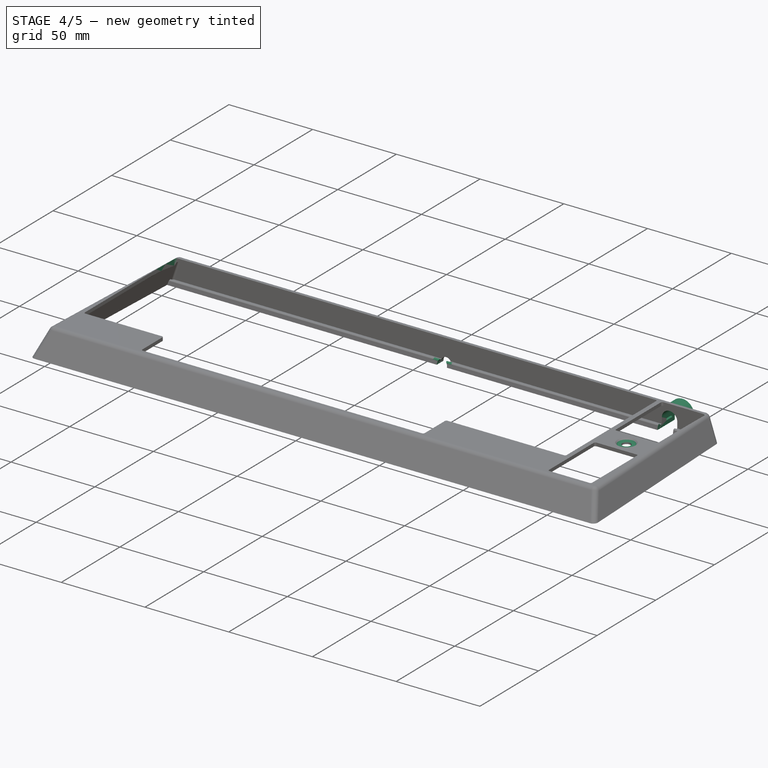
[diagram: stage 4 of 5 — iso view after this stage's code; geometry added in this stage tinted green]
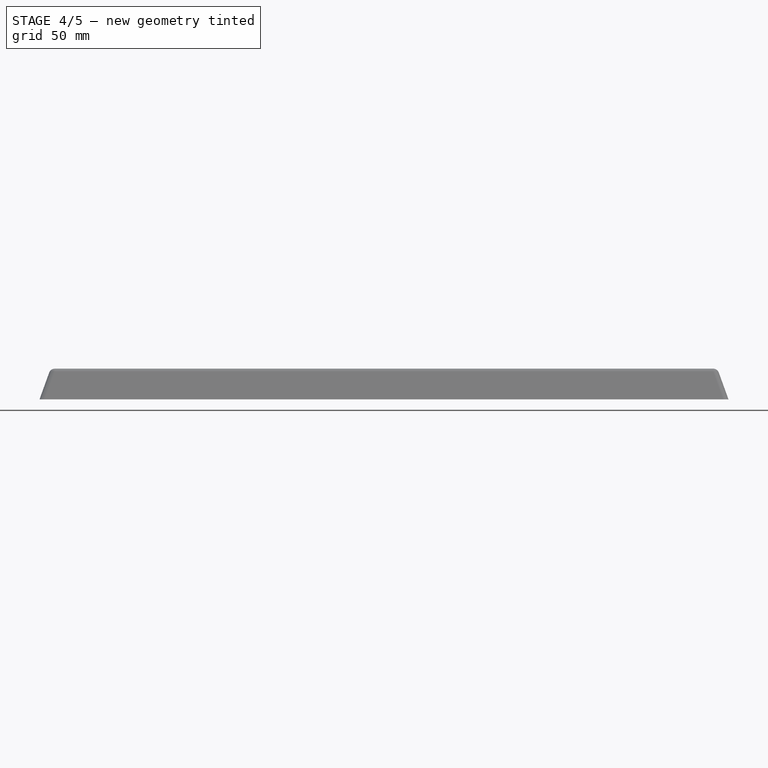
[diagram: stage 4 of 5 — front view after this stage's code; geometry added in this stage tinted green]
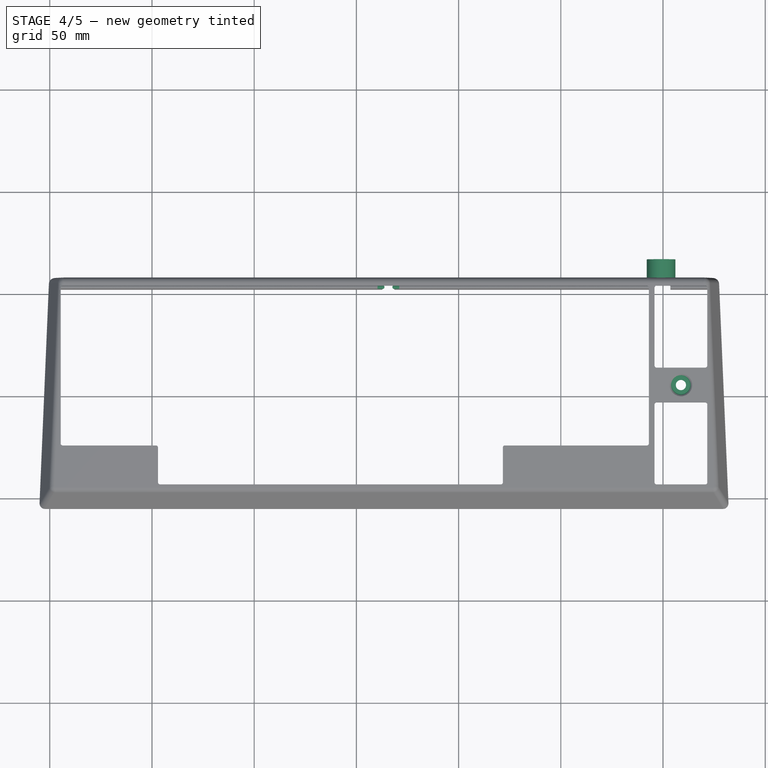
[diagram: stage 4 of 5 — top view after this stage's code; geometry added in this stage tinted green]
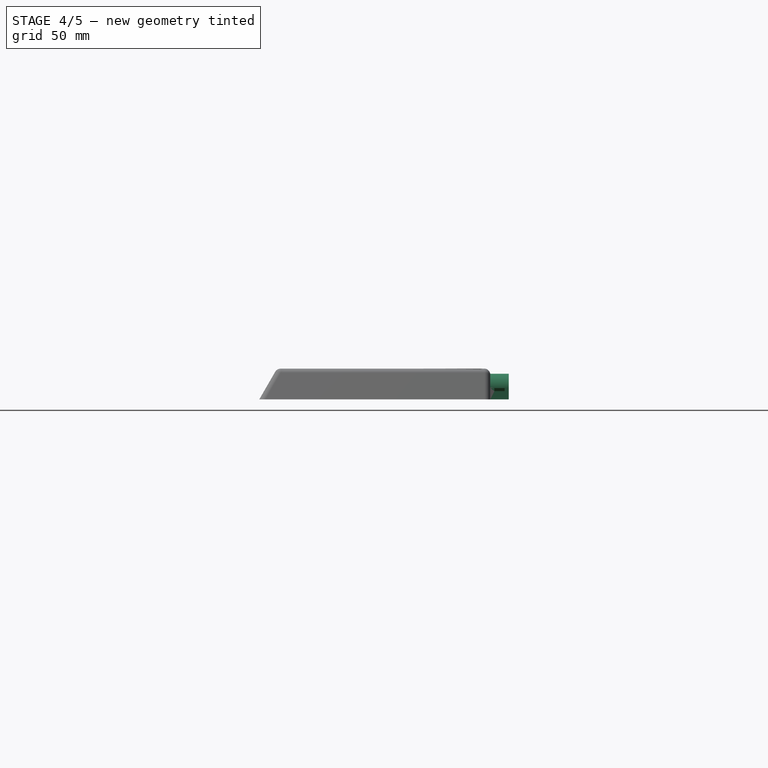
[diagram: stage 4 of 5 — right view after this stage's code; geometry added in this stage tinted green]
FEATURE [Sketcher::SketchObject] Sketch014  label="KeyboardCutoutSketch"
  ExternalGeometry = -> [Thickness]
  FullyConstrained = true
  MapMode = 5
  Placement = pos=(0,0,15) rot=(0,0,1;0rad)
  Support = -> [Thickness]
  sketch-geometry (18):
    g0: LineSegment StartX=-143.663 StartY=53 StartZ=0 EndX=142.087 EndY=53 EndZ=0
    g1: LineSegment StartX=142.087 StartY=53 StartZ=0 EndX=142.087 EndY=-23.2 EndZ=0
    g2: LineSegment StartX=142.087 StartY=-23.2 StartZ=0 EndX=70.6492 EndY=-23.2 EndZ=0
    g3: LineSegment StartX=70.6492 StartY=-23.2 StartZ=0 EndX=70.6492 EndY=-42.25 EndZ=0
    g4: LineSegment StartX=70.6492 StartY=-42.25 StartZ=0 EndX=-96.0378 EndY=-42.25 EndZ=0
    g5: LineSegment StartX=-96.0378 StartY=-42.25 StartZ=0 EndX=-96.0378 EndY=-23.2 EndZ=0
    g6: LineSegment StartX=-96.0378 StartY=-23.2 StartZ=0 EndX=-143.663 EndY=-23.2 EndZ=0
    g7: LineSegment StartX=-143.663 StartY=-23.2 StartZ=0 EndX=-143.663 EndY=53 EndZ=0
    g8: LineSegment StartX=146.85 StartY=53 StartZ=0 EndX=170.663 EndY=53 EndZ=0
    g9: LineSegment StartX=170.663 StartY=53 StartZ=0 EndX=170.663 EndY=14.9 EndZ=0
    g10: LineSegment StartX=170.663 StartY=14.9 StartZ=0 EndX=146.85 EndY=14.9 EndZ=0
    g11: LineSegment StartX=146.85 StartY=14.9 StartZ=0 EndX=146.85 EndY=53 EndZ=0
    g12: LineSegment StartX=146.85 StartY=-4.15 StartZ=0 EndX=170.663 EndY=-4.15 EndZ=0
    g13: LineSegment StartX=170.663 StartY=-4.15 StartZ=0 EndX=170.663 EndY=-42.25 EndZ=0
    g14: LineSegment StartX=170.663 StartY=-42.25 StartZ=0 EndX=146.85 EndY=-42.25 EndZ=0
    g15: LineSegment StartX=146.85 StartY=-42.25 StartZ=0 EndX=146.85 EndY=-4.15 EndZ=0
    g16: LineSegment StartX=-143.663 StartY=53 StartZ=0 EndX=-142.222 EndY=55 EndZ=0
    g17: LineSegment StartX=169.222 StartY=55 StartZ=0 EndX=170.663 EndY=53 EndZ=0
  constraints (52):
    c: Horizontal(g0)
    c: Coincident(g0,g1)
    c: Vertical(g1)
    c: Coincident(g1,g2)
    c: Horizontal(g2)
    c: Coincident(g2,g3)
    c: Vertical(g3)
    c: Coincident(g3,g4)
    c: Horizontal(g4)
    c: Coincident(g4,g5)
    c: Vertical(g5)
    c: Coincident(g5,g6)
    c: Horizontal(g6)
    c: Coincident(g6,g7)
    c: Coincident(g7,g0)
    c: Vertical(g7)
    c: Coincident(g8,g9)
    c: Coincident(g9,g10)
    c: Coincident(g10,g11)
    c: Coincident(g11,g8)
    c: Horizontal(g8)
    c: Horizontal(g10)
    c: Vertical(g9)
    c: Vertical(g11)
    c: Coincident(g12,g13)
    c: Coincident(g13,g14)
    c: Coincident(g14,g15)
    c: Coincident(g15,g12)
    c: Horizontal(g12)
    c: Horizontal(g14)
    c: Vertical(g13)
    c: Vertical(g15)
    c: DistanceX(g0,g0) = 285.75
    c: Horizontal(g5,g2)
    c: DistanceY(g3,g3) = 19.05
    c: DistanceY(g1,g1) = 76.2
    c: DistanceY(g11,g11) = 38.1
    c: DistanceY(g13,g13) = 38.1
    c: Horizontal(g3,g14)
    c: Horizontal(g0,g8)
    c: DistanceX(g10,g10) = 23.8125
    c: DistanceX(g0,g8) = 4.763
    c: Vertical(g10,g12)
    c: Vertical(g9,g12)
    c: DistanceX(g6,g6) = 47.625
    c: DistanceX(g2,g2) = 71.438
    c: DistanceY(g0,g-3) = 2
    c: Coincident(g16,g0)
    c: Coincident(g16,g-3)
    c: Coincident(g17,g-3)
    c: Coincident(g17,g8)
    c: Equal(g16,g17)
FEATURE [PartDesign::ShapeBinder] ShapeBinder001  label="KeyboardPocketSketchBinder"
  Placement = pos=(0,0,13) rot=(0,0,1;0rad)
  Support = -> [Sketch005]
  TraceSupport = false
FEATURE [Part::Offset2D] Offset2D001  label="KeyboardCutoutOffset"
  Fill = false
  Intersection = false
  Join = 0
  Mode = 1
  SelfIntersection = false
  Source = -> Sketch014
  Value = 1
FEATURE [PartDesign::ShapeBinder] ShapeBinder002  label="KeyboardCutoutOffsetBinder"
  Support = -> [Offset2D001]
  TraceSupport = false
FEATURE [PartDesign::Pocket] Pocket009  label="KeyboardCutoutPocket"
  BaseFeature = -> Thickness
  Direction = (0,0,-1)
  Length = 5
  Length2 = 5
  Profile = -> ShapeBinder002
  Type = 1
FEATURE [Sketcher::SketchObject] Sketch015  label="LedCraterSketch"
  ExternalGeometry = -> [Sketch014]
  FullyConstrained = true
  MapMode = 5
  Placement = pos=(0,0,15) rot=(0,0,1;0rad)
  Support = -> [Pad004]
  sketch-geometry (1):
    g0: Circle CenterX=158.757 CenterY=5.375 CenterZ=0 NormalX=0 NormalY=0 NormalZ=1 AngleXU=0 Radius=5.5
  constraints (3):
    c: Diameter(g0) = 11
    c: DistanceX(g0,g-3) = 11.906
    c: DistanceY(g0,g-3) = 47.625
FEATURE [PartDesign::Pocket] Pocket010  label="LedCraterPocket"
  BaseFeature = -> Pocket009
  Direction = (0,0,-1)
  Length = 1
  Length2 = 5
  Profile = -> Sketch015
  ReferenceAxis = -> Sketch015 [N_Axis]
  TaperAngle = -45
  Type = 0
FEATURE [Sketcher::SketchObject] Sketch016  label="LedWindowSketch"
  ExternalGeometry = -> [Sketch015]
  FullyConstrained = true
  MapMode = 5
  Placement = pos=(0,0,14) rot=(0,0,1;0rad)
  Support = -> [Pocket010]
  sketch-geometry (1):
    g0: Circle CenterX=158.757 CenterY=5.375 CenterZ=0 NormalX=0 NormalY=0 NormalZ=1 AngleXU=0 Radius=2.5
  constraints (2):
    c: Diameter(g0) = 5
    c: Coincident(g0,g-3)
FEATURE [PartDesign::Pocket] Pocket011  label="LedWindowPocket"
  BaseFeature = -> Pocket010
  Direction = (0,0,-1)
  Length = 5
  Length2 = 5
  Profile = -> Sketch016
  ReferenceAxis = -> Sketch016 [N_Axis]
  Type = 1
FEATURE [PartDesign::SubShapeBinder] Binder004  label="CableWindowMainBinder"
  BindCopyOnChange = 0
  BindMode = 0
  ClaimChildren = false
  Context = -> Body001 [Binder004.]
  Fuse = false
  MakeFace = true
  OffsetFill = false
  OffsetIntersection = false
  OffsetJoinType = 0
  OffsetOpenResult = false
  PartialLoad = false
  Relative = true
  Support = -> [Body[Pocket002.Sketch006.]]
  _Version = 2
FEATURE [Sketcher::SketchObject] Sketch017  label="CableTunnelSketch"
  AttachmentOffset = pos=(0,0,-2) rot=(0,0,1;0rad)
  ExternalGeometry = -> [Binder004]
  FullyConstrained = true
  MapMode = 5
  Placement = pos=(0,56,4e-16) rot=(0,0.707107,0.707107;3.14159rad)
  Support = -> [Draft004]
  sketch-geometry (7):
    g0: LineSegment StartX=-156.019 StartY=0 StartZ=0 EndX=-142.019 EndY=0 EndZ=0
    g1: LineSegment StartX=-142.019 StartY=0 StartZ=0 EndX=-142.019 EndY=5.5 EndZ=0
    g2: ArcOfCircle CenterX=-149.019 CenterY=5.5 CenterZ=0 NormalX=0 NormalY=0 NormalZ=1 AngleXU=0 Radius=7 StartAngle=0 EndAngle=3.14159
    g3: LineSegment StartX=-156.019 StartY=5.5 StartZ=0 EndX=-156.019 EndY=0 EndZ=0
    g4: LineSegment StartX=-149.019 StartY=0 StartZ=0 EndX=-149.019 EndY=12.5 EndZ=0
    g5: LineSegment StartX=-156.019 StartY=0 StartZ=0 EndX=-154.019 EndY=-1 EndZ=0
    g6: LineSegment StartX=-144.019 StartY=-1 StartZ=0 EndX=-142.019 EndY=0 EndZ=0
  constraints (18):
    c: PointOnObject(g0,g-1)
    c: Coincident(g0,g1)
    c: Vertical(g1)
    c: Tangent(g1,g2) = -1.5708
    c: Tangent(g2,g3) = -1.5708
    c: Coincident(g3,g0)
    c: Diameter(g2) = 14
    c: Vertical(g3)
    c: PointOnObject(g4,g2)
    c: Vertical(g4)
    c: DistanceY(g1,g1) = 5.5
    c: Symmetric(g0,g0,g4)
    c: Horizontal(g0)
    c: Coincident(g5,g0)
    c: Coincident(g5,g-3)
    c: Coincident(g6,g-3)
    c: Coincident(g6,g0)
    c: Equal(g6,g5)
FEATURE [PartDesign::Pad] Pad005  label="CableTunnelPad"
  BaseFeature = -> Pocket011
  Direction = (0,1,-2e-16)
  Length = 11
  Length2 = 10
  Profile = -> Sketch017
  ReferenceAxis = -> Sketch017 [N_Axis]
  Refine = true
  Type = 0
FEATURE [Sketcher::SketchObject] Sketch018  label="CableTunnelHoleSketch"
  ExternalGeometry = -> [Sketch017]
  FullyConstrained = true
  MapMode = 5
  Placement = pos=(0,58,0) rot=(0,0.707107,0.707107;3.14159rad)
  Support = -> [Draft004]
  sketch-geometry (4):
    g0: LineSegment StartX=-153.619 StartY=-1 StartZ=0 EndX=-144.419 EndY=-1 EndZ=0
    g1: LineSegment StartX=-144.419 StartY=-1 StartZ=0 EndX=-144.419 EndY=5.5 EndZ=0
    g2: ArcOfCircle CenterX=-149.019 CenterY=5.5 CenterZ=0 NormalX=0 NormalY=0 NormalZ=1 AngleXU=0 Radius=4.6 StartAngle=0 EndAngle=3.14159
    g3: LineSegment StartX=-153.619 StartY=5.5 StartZ=0 EndX=-153.619 EndY=-1 EndZ=0
  constraints (11):
    c: Coincident(g0,g1)
    c: Vertical(g1)
    c: Tangent(g1,g2) = -1.5708
    c: Coincident(g2,g3)
    c: Coincident(g3,g0)
    c: Vertical(g3)
    c: DistanceX(g0,g0) = 9.2
    c: Horizontal(g2,g2)
    c: Horizontal(g0)
    c: Coincident(g2,g-3)
    c: DistanceY(g1,g1) = 6.5
FEATURE [Sketcher::SketchObject] Sketch019  label="CableTieSketch"
  AttachmentOffset = pos=(0,0,7) rot=(0,0,1;0rad)
  ExternalGeometry = -> [Sketch017]
  FullyConstrained = true
  MapMode = 5
  Placement = pos=(0,65,-1.6e-15) rot=(0,0.707107,0.707107;3.14159rad)
  Support = -> [Draft004]
  sketch-geometry (2):
    g0: Circle CenterX=-149.019 CenterY=11.1569 CenterZ=0 NormalX=0 NormalY=0 NormalZ=1 AngleXU=0 Radius=10
    g1: Circle CenterX=-149.019 CenterY=11.1569 CenterZ=0 NormalX=0 NormalY=0 NormalZ=1 AngleXU=0 Radius=9
  constraints (5):
    c: Diameter(g0) = 20
    c: Diameter(g1) = 18
    c: Coincident(g0,g1)
    c: Vertical(g0,g-3)
    c: PointOnObject(g-3,g1)
FEATURE [PartDesign::Pocket] Pocket013  label="CableTiePocket"
  BaseFeature = -> Pad005
  Direction = (0,-1,2e-16)
  Length = 5
  Length2 = 5
  Profile = -> Sketch019
  ReferenceAxis = -> Sketch019 [N_Axis]
  Type = 0
FEATURE [PartDesign::Pad] Pad006  label="Teeth"
  BaseFeature = -> Pocket013
  Direction = (-1,0,0)
  Length = 1
  Length2 = 10
  Profile = -> Sketch021
  ReferenceAxis = -> Pocket013 [Edge25]
  Refine = true
  Type = 3
  UpToFace = -> Pocket013 [Face18]
FEATURE [PartDesign::Body] Body  label="MainBody"
  Group = -> [Sketch,Pad,Sketch001,Pad001,Draft,Draft001,Draft002,Sketch002,Pad002,Sketch003,Pocket,Sketch004,Fillet,Pad003,Fillet002,Sketch005,Pocket001,Sketch006,Pocket002,Sketch007,Pocket003,Sketch008,Pocket004,Sketch010,Pocket006,Cylinder,Cylinder001,Sketch011,Pocket007,Sketch012,Pocket008,Sketch022,Pocket015,Fillet014,Fillet006,Sketch023,Pocket016]
  Origin = -> Origin
  Tip = -> Fillet014
FEATURE [PartDesign::Pocket] Pocket018  label="CableTunnelPocket"
  BaseFeature = -> Pad006
  Direction = (0,-1,2e-16)
  Length = 19
  Length2 = 5
  Midplane = true
  Profile = -> Sketch018
  ReferenceAxis = -> Sketch018 [N_Axis]
  Refine = true
  Type = 0
FEATURE [PartDesign::Pocket] Pocket019  label="UsbCablePocket"
  BaseFeature = -> Pocket018
  Direction = (0,-1,2e-16)
  Length = 15
  Length2 = 5
  Midplane = true
  Profile = -> Sketch020
  ReferenceAxis = -> Sketch020 [N_Axis]
  Type = 0
FEATURE [PartDesign::Body] Body002  label="RaiserBody"
  Group = -> [Binder,Pad008,Pocket017,Fillet010,Draft007,Fillet011,Fillet012,Sketch024,Sketch025,Binder005]
  Origin = -> Origin002
  Tip = -> Fillet012
FEATURE [PartDesign::Fillet] Fillet015  label="SpaceBarSideFillets"
  Base = -> Pocket019 [Edge199,Edge218]
  BaseFeature = -> Pocket019
  Radius = 1
  SupportTransform = false
  UseAllEdges = false
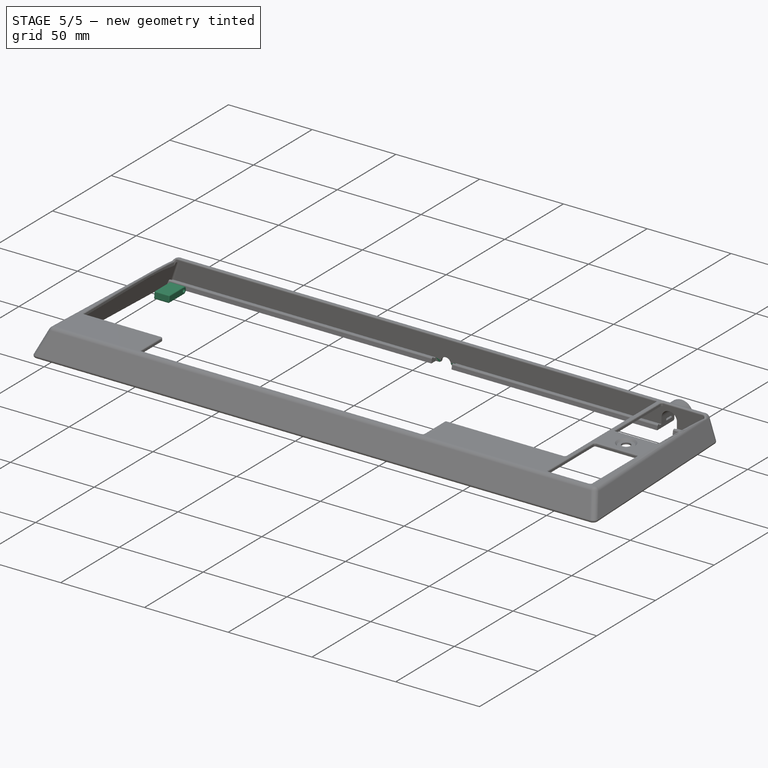
[diagram: stage 5 of 5 — iso view after this stage's code; geometry added in this stage tinted green]
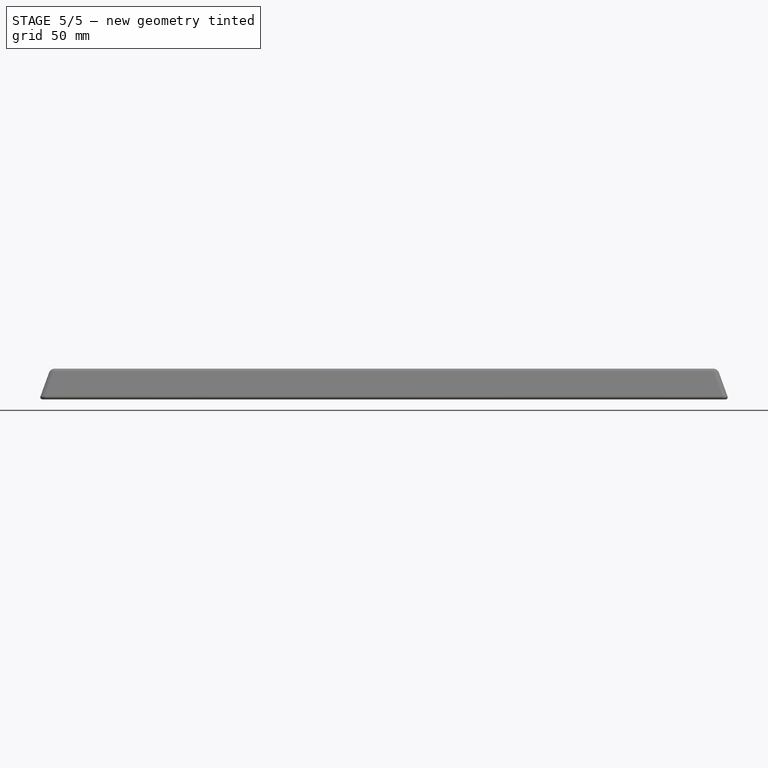
[diagram: stage 5 of 5 — front view after this stage's code; geometry added in this stage tinted green]
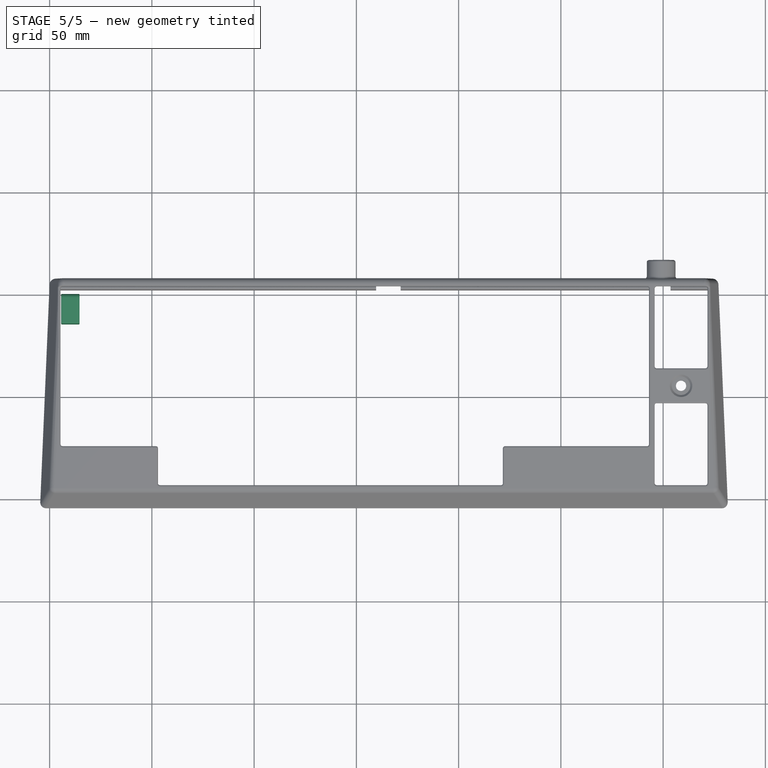
[diagram: stage 5 of 5 — top view after this stage's code; geometry added in this stage tinted green]
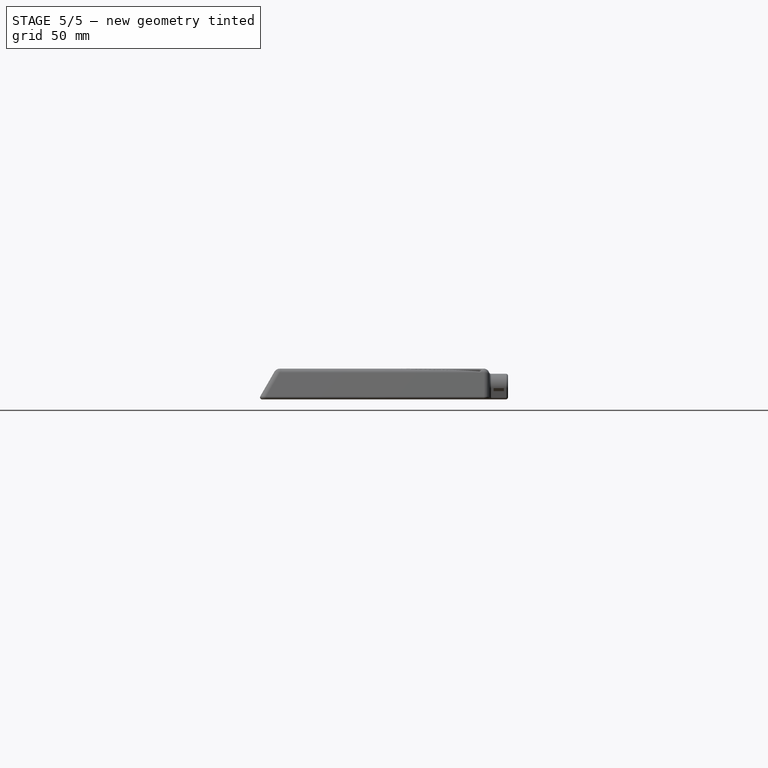
[diagram: stage 5 of 5 — right view after this stage's code; geometry added in this stage tinted green]
FEATURE [Sketcher::SketchObject] Sketch025  label="RaiserSketch"
  ExternalGeometry = -> [Binder]
  FullyConstrained = true
  MapMode = 5
  Support = -> [Binder]
  sketch-geometry (4):
    g0: LineSegment StartX=-144.398 StartY=50.5 StartZ=0 EndX=-135.398 EndY=50.5 EndZ=0
    g1: LineSegment StartX=-135.398 StartY=50.5 StartZ=0 EndX=-135.398 EndY=35.5 EndZ=0
    g2: LineSegment StartX=-135.398 StartY=35.5 StartZ=0 EndX=-144.398 EndY=35.5 EndZ=0
    g3: LineSegment StartX=-144.398 StartY=35.5 StartZ=0 EndX=-144.398 EndY=50.5 EndZ=0
  constraints (12):
    c: Coincident(g0,g1)
    c: Coincident(g1,g2)
    c: Coincident(g2,g3)
    c: Coincident(g3,g0)
    c: Horizontal(g0)
    c: Horizontal(g2)
    c: Vertical(g1)
    c: Vertical(g3)
    c: DistanceY(g0,g-4) = 0.5
    c: DistanceY(g1,g1) = 15
    c: DistanceX(g-3,g0) = 0.5
    c: DistanceX(g0,g-4) = 0.5
FEATURE [PartDesign::Pad] Pad008  label="RaiserPad"
  Direction = (0,0,1)
  Length = 4
  Length2 = 10
  Profile = -> Sketch025
  ReferenceAxis = -> Sketch025 [N_Axis]
  Type = 0
FEATURE [PartDesign::SubShapeBinder] Binder005  label="AxisHoleBinder"
  BindCopyOnChange = 0
  BindMode = 0
  ClaimChildren = false
  Context = -> Body002 [Binder005.]
  Fuse = false
  MakeFace = true
  OffsetFill = false
  OffsetIntersection = false
  OffsetJoinType = 0
  OffsetOpenResult = false
  PartialLoad = false
  Relative = true
  Support = -> [Body[Pocket016.Edge406]]
  _Version = 2
FEATURE [Sketcher::SketchObject] Sketch024  label="AxisHoleSketch"
  ExternalGeometry = -> [Binder005]
  FullyConstrained = true
  MapMode = 5
  Placement = pos=(-134.898,0,0) rot=(0.57735,0.57735,0.57735;2.0944rad)
  Support = -> [Binder005]
  sketch-geometry (1):
    g0: Circle CenterX=48.5 CenterY=2 CenterZ=0 NormalX=0 NormalY=0 NormalZ=1 AngleXU=0 Radius=1
  constraints (2):
    c: Coincident(g0,g-3)
    c: Tangent(g0,g-3)
FEATURE [PartDesign::Pocket] Pocket017  label="AxisPocket"
  BaseFeature = -> Pad008
  Direction = (-1,0,0)
  Length = 5
  Length2 = 5
  Profile = -> Sketch024
  ReferenceAxis = -> Sketch024 [N_Axis]
  Type = 1
FEATURE [PartDesign::Fillet] Fillet010  label="RotationFillet"
  Base = -> Pocket017 [Edge3,Edge4]
  BaseFeature = -> Pocket017
  Radius = 1.95
  SupportTransform = false
  UseAllEdges = false
FEATURE [PartDesign::Draft] Draft007  label="BottomDraft"
  Angle = 8
  Base = -> Fillet010 [Face7]
  BaseFeature = -> Fillet010
  NeutralPlane = -> Fillet010 [Face6]
  SupportTransform = false
FEATURE [PartDesign::Fillet] Fillet011  label="RaiserSideFillet"
  Base = -> Draft007 [Edge8,Edge16]
  BaseFeature = -> Draft007
  Radius = 0.5
  SupportTransform = false
  UseAllEdges = false
FEATURE [PartDesign::Fillet] Fillet012  label="RaiserBottomFillet"
  Base = -> Fillet011 [Edge26]
  BaseFeature = -> Fillet011
  Radius = 0.5
  SupportTransform = false
  UseAllEdges = false
FEATURE [PartDesign::Fillet] Fillet016  label="KeyboardOutlineFillet"
  Base = -> Fillet015 [Edge8,Edge33,Edge41]
  BaseFeature = -> Fillet015
  Radius = 0.75
  SupportTransform = false
  UseAllEdges = false
FEATURE [PartDesign::Fillet] Fillet017  label="PortFillets"
  Base = -> Fillet016 [Edge229,Edge234,Edge226]
  BaseFeature = -> Fillet016
  Radius = 1
  SupportTransform = false
  UseAllEdges = false
FEATURE [PartDesign::Fillet] Fillet018  label="BottomFillet"
  Base = -> Fillet017 [Edge23,Edge17]
  BaseFeature = -> Fillet017
  Radius = 1
  SupportTransform = false
  UseAllEdges = false
FEATURE [PartDesign::SubShapeBinder] Binder006  label="UsbPocketBinder"
  BindCopyOnChange = 0
  BindMode = 0
  ClaimChildren = false
  Context = -> Body001 [Binder006.]
  Fuse = false
  MakeFace = true
  OffsetFill = false
  OffsetIntersection = false
  OffsetJoinType = 0
  OffsetOpenResult = false
  PartialLoad = false
  Relative = true
  Support = -> [Body[Pocket008.Sketch012.]]
  _Version = 2
FEATURE [Sketcher::SketchObject] Sketch026  label="UsbInternalClearanceSketch"
  ExternalGeometry = -> [Binder006]
  FullyConstrained = true
  MapMode = 5
  Placement = pos=(0,56,0) rot=(1,0,0;1.5708rad)
  Support = -> [Pocket019]
  sketch-geometry (4):
    g0: LineSegment StartX=9.65 StartY=5 StartZ=0 EndX=21.65 EndY=5 EndZ=0
    g1: LineSegment StartX=21.65 StartY=5 StartZ=0 EndX=21.65 EndY=-4 EndZ=0
    g2: LineSegment StartX=21.65 StartY=-4 StartZ=0 EndX=9.65 EndY=-4 EndZ=0
    g3: LineSegment StartX=9.65 StartY=-4 StartZ=0 EndX=9.65 EndY=5 EndZ=0
  constraints (10):
    c: Coincident(g0,g1)
    c: Coincident(g1,g2)
    c: Coincident(g2,g3)
    c: Coincident(g3,g0)
    c: Horizontal(g0)
    c: Horizontal(g2)
    c: Vertical(g1)
    c: Vertical(g3)
    c: Coincident(g0,g-3)
    c: Coincident(g1,g-4)
FEATURE [PartDesign::Pocket] Pocket020  label="UsbInternalClearance"
  BaseFeature = -> Fillet018
  Direction = (0,1,-2e-16)
  Length = 5
  Length2 = 5
  Profile = -> Sketch026
  ReferenceAxis = -> Sketch026 [N_Axis]
  Refine = true
  Reversed = true
  Type = 0
FEATURE [PartDesign::Body] Body001  label="CoverBody"
  BaseFeature = -> Offset2D
  Group = -> [BaseFeature,ShapeBinder,Sketch013,Pad004,Draft003,Draft004,Fillet004,Fillet005,Thickness,Sketch014,ShapeBinder001,ShapeBinder002,Pocket009,Sketch015,Pocket010,Sketch016,Pocket011,Sketch017,Pad005,Sketch018,Sketch019,Pocket013,Binder001,Sketch020,Binder002,Sketch021,Pad006,Binder004,Pocket018,Pocket019,Fillet015,Fillet016,Fillet017,Fillet018,Binder006,Sketch026,Pocket020]
  Origin = -> Origin001
  Tip = -> Pocket020
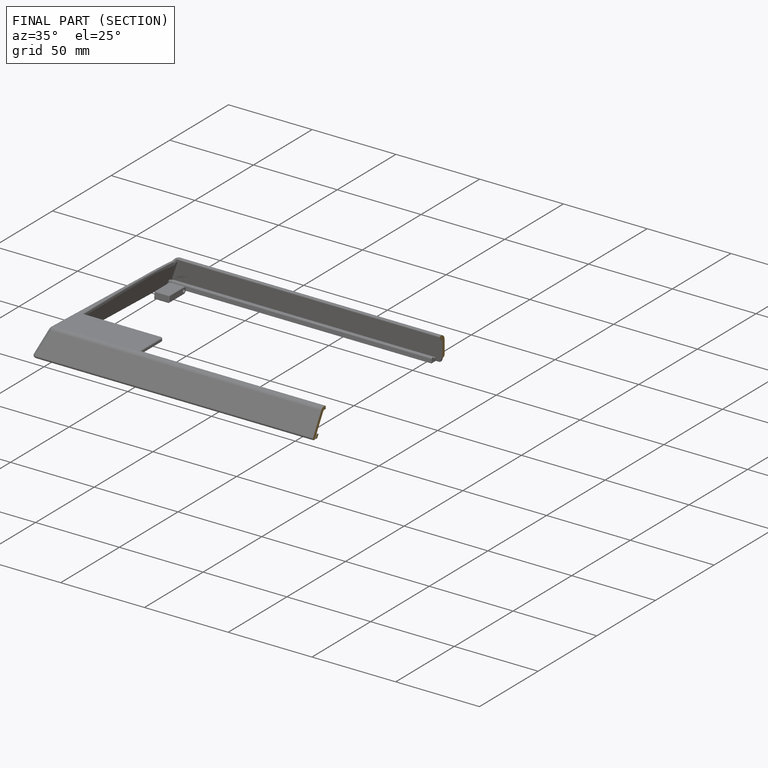
[diagram: finished part — half-section view (interior)]
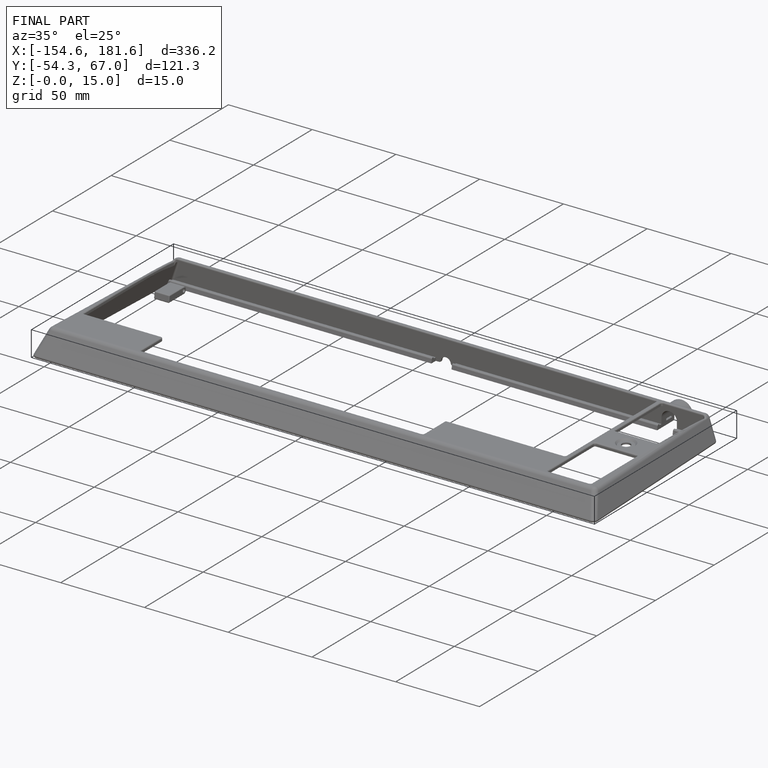
[diagram: finished part — iso view with bounding-box wireframe]
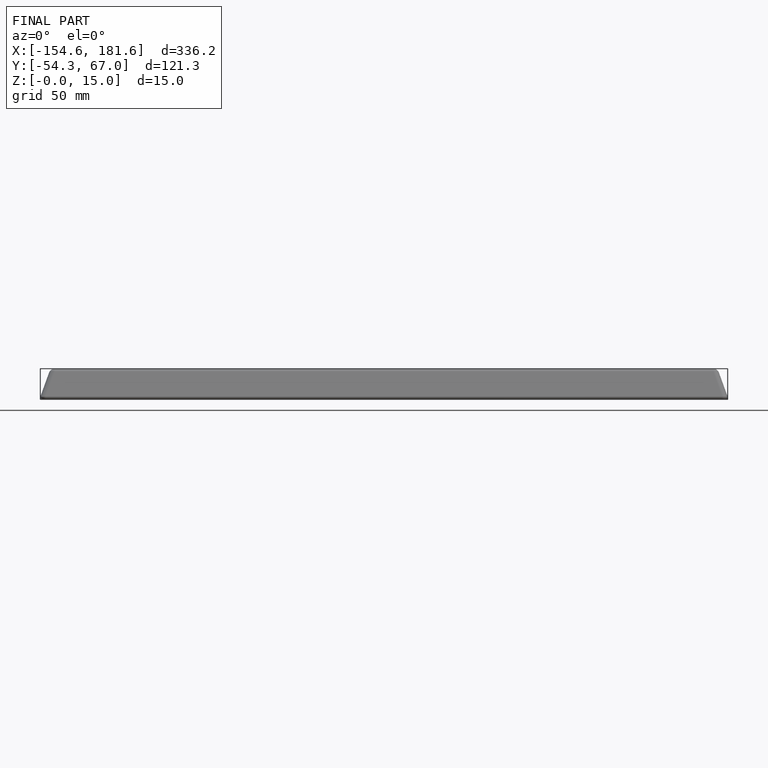
[diagram: finished part — front view with bounding-box wireframe]
